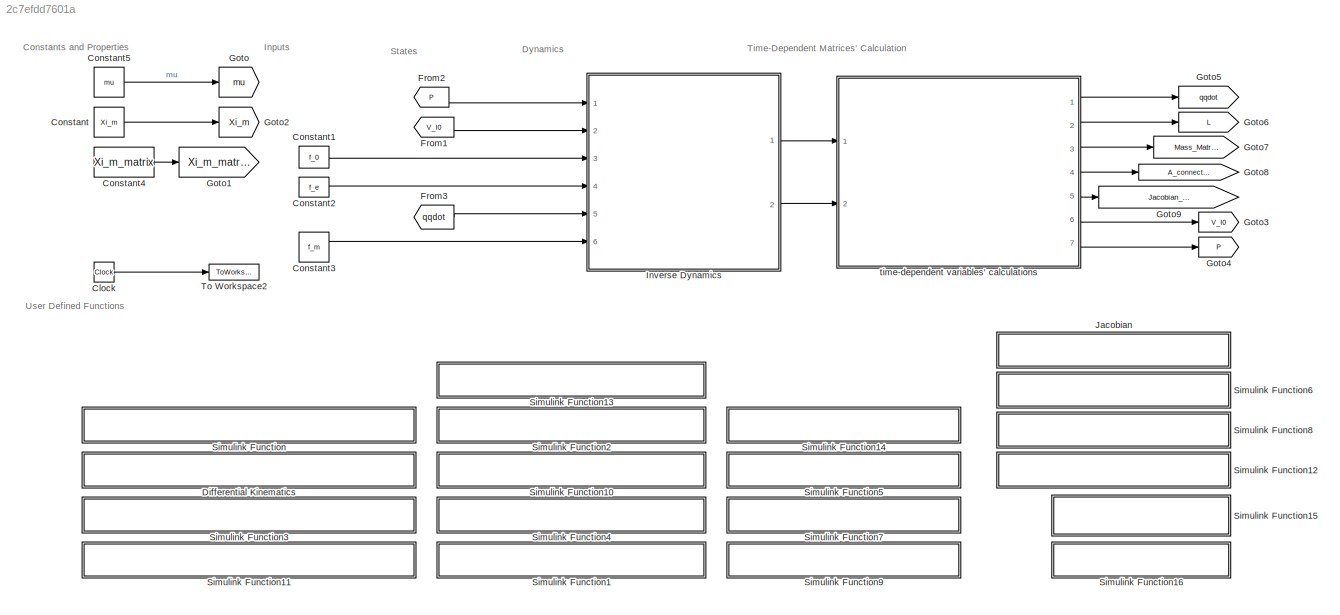
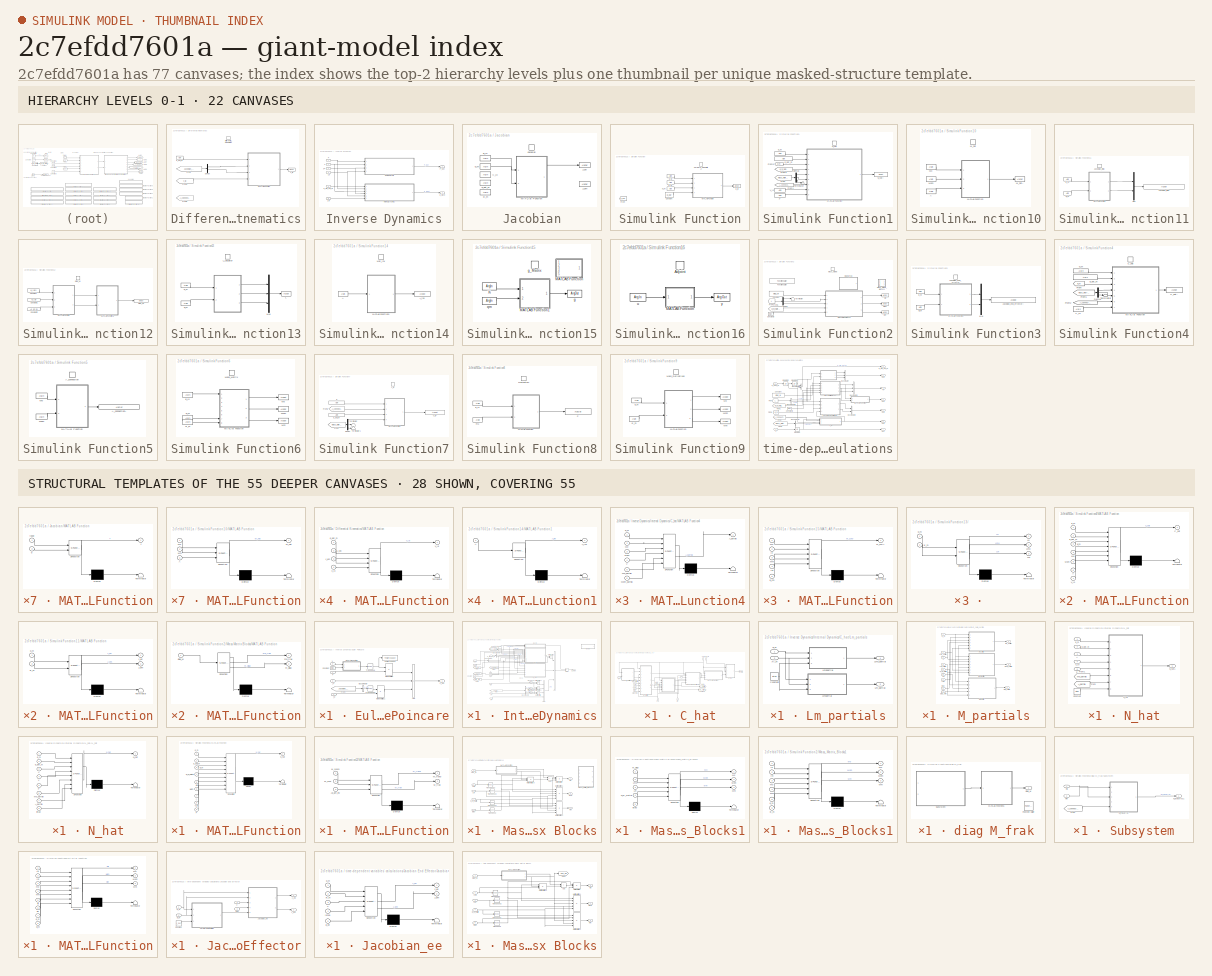
[diagram: thumbnail index - top-2 hierarchy levels (22 canvases) + 28 structural-template representatives of the remaining 55 canvases]
MODEL slx_2c7efdd7601a
KIND model
CONFIG AbsTol = auto
CONFIG EnableMultiTasking = off
CONFIG FixedStep = auto
CONFIG InitFcn = % ************** Initiate forces\n% f0=[0;0;0;0;0;0];\n% f0=[0;0;0;0;0;0;0];\nf_0=[0;0;0];\nf_m=[0;0];\nf_e=[0;0;0;0;0;0];\n% ************** Initiate states\nq_m=[0;0];\nq_dot_m=[0;0];\nP=[0;0;0];\nV_I0=[0;0;0];\n% ************** Load main\n%run(Main.m)
CONFIG MaxStep = auto
CONFIG MinStep = auto
CONFIG RelTol = 1e-3
CONFIG SampleTimeConstraint = Unconstrained
CONFIG SolverName = VariableStepAuto
CONFIG StartTime = 0.0
CONFIG StopTime = 10.0
BLOCK [Clock] Clock
BLOCK [Constant] Constant
  Value = Xi_m
  VectorParams1D = off
BLOCK [Constant] Constant1
  Value = f_0
  VectorParams1D = off
BLOCK [Constant] Constant2
  Value = f_e
  VectorParams1D = off
BLOCK [Constant] Constant3
  Value = f_m
  VectorParams1D = off
BLOCK [Constant] Constant4
  Value = Xi_m_matrix
  VectorParams1D = off
BLOCK [Constant] Constant5
  Commented = on
  Value = mu
BLOCK [SubSystem] Differential Kinematics
  Commented = on
  Ports = [0, 0, 0, 1]
  RequestExecContextInheritance = off
  TreatAsAtomicUnit = on
BLOCK [Demux] Differential Kinematics/Demux
  Outputs = 2
  Ports = [1, 2]
BLOCK [TriggerPort] Differential Kinematics/Differential_Kinematics
  FunctionName = Differential_Kinematics
  FunctionVisibility = scoped
  IsSimulinkFunction = on
  Ports = []
  StatesWhenEnabling = held
  TriggerType = function-call
  VariantControl = (inherit)
BLOCK [From] Differential Kinematics/From
  GotoTag = Jacobian_end_effector
  TagVisibility = global
BLOCK [From] Differential Kinematics/From1
  GotoTag = V_I0
  TagVisibility = global
BLOCK [From] Differential Kinematics/From2
  Commented = on
  GotoTag = A_connection
  TagVisibility = global
BLOCK [SubSystem] Differential Kinematics/MATLAB Function
  ErrorFcn = Stateflow.Translate.translate
  PermitHierarchicalResolution = ExplicitOnly
  Ports = [4, 1]
  RequestExecContextInheritance = off
  SFBlockType = MATLAB Function
  TreatAsAtomicUnit = on
BLOCK [Demux] Differential Kinematics/MATLAB Function/ Demux 
  Outputs = 1
  Ports = [1, 1]
BLOCK [S-Function] Differential Kinematics/MATLAB Function/ SFunction 
  EnableBusSupport = on
  FunctionName = sf_sfun
  PortCounts = [4 2]
  Ports = [4, 2]
  SFcnIsStateOwnerBlock = off
  SFunctionDeploymentMode = off
  Tag = Stateflow S-Function 4
BLOCK [Terminator] Differential Kinematics/MATLAB Function/ Terminator 
BLOCK [Inport] Differential Kinematics/MATLAB Function/J_e0
  Port = 2
BLOCK [Inport] Differential Kinematics/MATLAB Function/J_em
  Port = 3
BLOCK [Inport] Differential Kinematics/MATLAB Function/V_I0
  Port = 4
BLOCK [Outport] Differential Kinematics/MATLAB Function/V_Ie
BLOCK [Inport] Differential Kinematics/MATLAB Function/q_dot_m
BLOCK [ArgOut] Differential Kinematics/V_Ie
  ArgumentName = V_Ie
  DisableCoverage = on
BLOCK [ArgIn] Differential Kinematics/q_dot_m
  ArgumentName = q_dot_m
  DisableCoverage = on
BLOCK [From] From1
  GotoTag = V_I0
  TagVisibility = global
BLOCK [From] From2
  GotoTag = P
  TagVisibility = global
BLOCK [From] From3
  GotoTag = qqdot
  TagVisibility = global
BLOCK [Goto] Goto
  Commented = on
  GotoTag = mu
  TagVisibility = global
BLOCK [Goto] Goto1
  GotoTag = Xi_m_matrix
  TagVisibility = global
BLOCK [Goto] Goto2
  GotoTag = Xi_m
  TagVisibility = global
BLOCK [Goto] Goto3
  GotoTag = V_I0
  TagVisibility = global
BLOCK [Goto] Goto4
  GotoTag = P
  TagVisibility = global
BLOCK [Goto] Goto5
  GotoTag = qqdot
  TagVisibility = global
BLOCK [Goto] Goto6
  GotoTag = L
  TagVisibility = global
BLOCK [Goto] Goto7
  GotoTag = Mass_Matrix
  TagVisibility = global
BLOCK [Goto] Goto8
  GotoTag = A_connection
  TagVisibility = global
BLOCK [Goto] Goto9
  GotoTag = Jacobian_end_effector
  TagVisibility = global
BLOCK [SubSystem] Inverse Dynamics
  NameLocation = right
  Ports = [6, 2]
  RequestExecContextInheritance = off
BLOCK [SubSystem] Inverse Dynamics/Euler Poincare
  Ports = [4, 1]
  RequestExecContextInheritance = off
BLOCK [Sum] Inverse Dynamics/Euler Poincare/Add
  IconShape = rectangular
  Inputs = +--
  Ports = [3, 1]
BLOCK [BusSelector] Inverse Dynamics/Euler Poincare/Bus Selector
  OutputSignals = J_e0
  Ports = [1, 1]
BLOCK [Constant] Inverse Dynamics/Euler Poincare/Constant
  Value = iota0
BLOCK [From] Inverse Dynamics/Euler Poincare/From
  GotoTag = Jacobian_end_effector
  TagVisibility = global
BLOCK [SubSystem] Inverse Dynamics/Euler Poincare/MATLAB Function
  ErrorFcn = Stateflow.Translate.translate
  PermitHierarchicalResolution = ExplicitOnly
  Ports = [2, 1]
  RequestExecContextInheritance = off
  SFBlockType = MATLAB Function
  TreatAsAtomicUnit = on
BLOCK [Demux] Inverse Dynamics/Euler Poincare/MATLAB Function/ Demux 
  Outputs = 1
  Ports = [1, 1]
BLOCK [S-Function] Inverse Dynamics/Euler Poincare/MATLAB Function/ SFunction 
  EnableBusSupport = on
  FunctionName = sf_sfun
  PortCounts = [2 2]
  Ports = [2, 2]
  SFcnIsStateOwnerBlock = off
  SFunctionDeploymentMode = off
  Tag = Stateflow S-Function 24
BLOCK [Terminator] Inverse Dynamics/Euler Poincare/MATLAB Function/ Terminator 
BLOCK [Inport] Inverse Dynamics/Euler Poincare/MATLAB Function/V
BLOCK [Outport] Inverse Dynamics/Euler Poincare/MATLAB Function/adj_low
BLOCK [Inport] Inverse Dynamics/Euler Poincare/MATLAB Function/iota0
  Port = 2
BLOCK [Product] Inverse Dynamics/Euler Poincare/Matrix Multiply
  Multiplication = Matrix(*)
  Ports = [2, 1]
BLOCK [Product] Inverse Dynamics/Euler Poincare/Matrix Multiply1
  Multiplication = Matrix(*)
  Ports = [2, 1]
BLOCK [Inport] Inverse Dynamics/Euler Poincare/P
BLOCK [Outport] Inverse Dynamics/Euler Poincare/P_dot
BLOCK [ToWorkspace] Inverse Dynamics/Euler Poincare/To Workspace
  FixptAsFi = on
  MaxDataPoints = inf
  Ports = [1]
  SampleTime = -1
  SaveFormat = Timeseries
  VariableName = simout
BLOCK [Math] Inverse Dynamics/Euler Poincare/Transpose
  Operator = transpose
  Ports = [1, 1]
BLOCK [Math] Inverse Dynamics/Euler Poincare/Transpose1
  Operator = transpose
  Ports = [1, 1]
BLOCK [Inport] Inverse Dynamics/Euler Poincare/V
  Port = 2
BLOCK [Inport] Inverse Dynamics/Euler Poincare/f_0
  Port = 3
BLOCK [Inport] Inverse Dynamics/Euler Poincare/f_e
  Port = 4
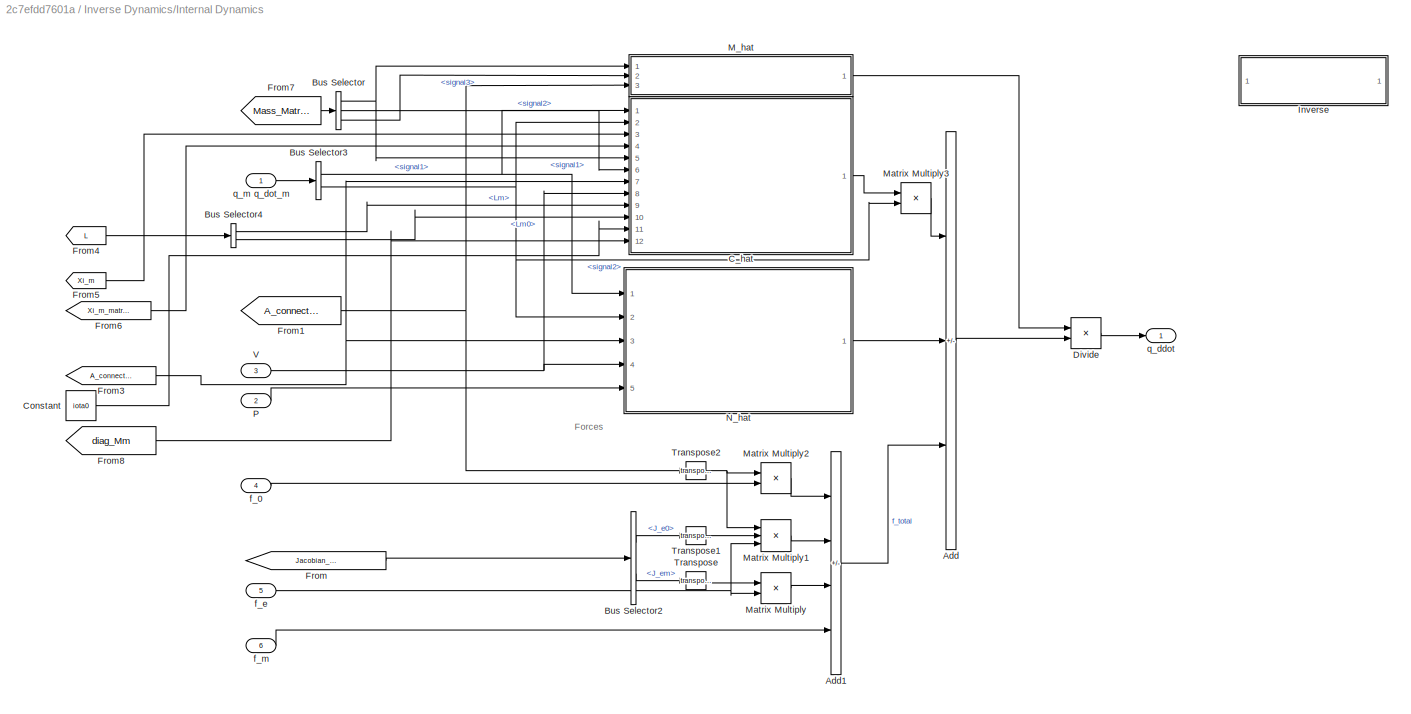
BLOCK [SubSystem] Inverse Dynamics/Internal Dynamics
  Ports = [6, 1]
  RequestExecContextInheritance = off
BLOCK [Sum] Inverse Dynamics/Internal Dynamics/Add
  IconShape = rectangular
  Inputs = --+
  Ports = [3, 1]
BLOCK [Sum] Inverse Dynamics/Internal Dynamics/Add1
  IconShape = rectangular
  Inputs = --++
  Ports = [4, 1]
BLOCK [BusSelector] Inverse Dynamics/Internal Dynamics/Bus Selector
  OutputSignals = signal1,signal2,signal3
  Ports = [1, 3]
BLOCK [BusSelector] Inverse Dynamics/Internal Dynamics/Bus Selector2
  OutputSignals = J_e0,J_em
  Ports = [1, 2]
BLOCK [BusSelector] Inverse Dynamics/Internal Dynamics/Bus Selector3
  OutputSignals = signal1,signal2
  Ports = [1, 2]
BLOCK [BusSelector] Inverse Dynamics/Internal Dynamics/Bus Selector4
  OutputSignals = Lm,Lm0
  Ports = [1, 2]
BLOCK [SubSystem] Inverse Dynamics/Internal Dynamics/C_hat
  Ports = [12, 1]
  RequestExecContextInheritance = off
BLOCK [Inport] Inverse Dynamics/Internal Dynamics/C_hat/<Lm0>
  NameLocation = right
  Port = 10
BLOCK [Inport] Inverse Dynamics/Internal Dynamics/C_hat/<Lm>
  Port = 9
BLOCK [Inport] Inverse Dynamics/Internal Dynamics/C_hat/A
  Port = 7
BLOCK [SubSystem] Inverse Dynamics/Internal Dynamics/C_hat/C_hat
  ErrorFcn = Stateflow.Translate.translate
  PermitHierarchicalResolution = ExplicitOnly
  Ports = [3, 1]
  RequestExecContextInheritance = off
  SFBlockType = MATLAB Function
  TreatAsAtomicUnit = on
BLOCK [Demux] Inverse Dynamics/Internal Dynamics/C_hat/C_hat/ Demux 
  Outputs = 1
  Ports = [1, 1]
BLOCK [S-Function] Inverse Dynamics/Internal Dynamics/C_hat/C_hat/ SFunction 
  EnableBusSupport = on
  FunctionName = sf_sfun
  PortCounts = [3 2]
  Ports = [3, 2]
  SFcnIsStateOwnerBlock = off
  SFunctionDeploymentMode = off
  Tag = Stateflow S-Function 30
BLOCK [Terminator] Inverse Dynamics/Internal Dynamics/C_hat/C_hat/ Terminator 
BLOCK [Outport] Inverse Dynamics/Internal Dynamics/C_hat/C_hat/C_hat
BLOCK [Inport] Inverse Dynamics/Internal Dynamics/C_hat/C_hat/Mm_hat_partial
  Port = 3
BLOCK [Inport] Inverse Dynamics/Internal Dynamics/C_hat/C_hat/q_dot_m
  Port = 2
BLOCK [Inport] Inverse Dynamics/Internal Dynamics/C_hat/C_hat/q_m
BLOCK [Outport] Inverse Dynamics/Internal Dynamics/C_hat/C_hat1
BLOCK [Goto] Inverse Dynamics/Internal Dynamics/C_hat/Goto1
  GotoTag = A_partial
  TagVisibility = global
BLOCK [Goto] Inverse Dynamics/Internal Dynamics/C_hat/Goto2
  GotoTag = M0_partial
  TagVisibility = global
BLOCK [SubSystem] Inverse Dynamics/Internal Dynamics/C_hat/Lm_partials
  Ports = [2, 2]
  RequestExecContextInheritance = off
BLOCK [Constant] Inverse Dynamics/Internal Dynamics/C_hat/Lm_partials/Constant
  Value = iota0
BLOCK [Outport] Inverse Dynamics/Internal Dynamics/C_hat/Lm_partials/Lm0_partial
BLOCK [SubSystem] Inverse Dynamics/Internal Dynamics/C_hat/Lm_partials/Lm0partial
  ErrorFcn = Stateflow.Translate.translate
  PermitHierarchicalResolution = ExplicitOnly
  Ports = [3, 1]
  RequestExecContextInheritance = off
  SFBlockType = MATLAB Function
  TreatAsAtomicUnit = on
BLOCK [Demux] Inverse Dynamics/Internal Dynamics/C_hat/Lm_partials/Lm0partial/ Demux 
  Outputs = 1
  Ports = [1, 1]
BLOCK [S-Function] Inverse Dynamics/Internal Dynamics/C_hat/Lm_partials/Lm0partial/ SFunction 
  EnableBusSupport = on
  FunctionName = sf_sfun
  PortCounts = [3 2]
  Ports = [3, 2]
  SFcnIsStateOwnerBlock = off
  SFunctionDeploymentMode = off
  Tag = Stateflow S-Function 31
BLOCK [Terminator] Inverse Dynamics/Internal Dynamics/C_hat/Lm_partials/Lm0partial/ Terminator 
BLOCK [Outport] Inverse Dynamics/Internal Dynamics/C_hat/Lm_partials/Lm0partial/Lm0_partial
BLOCK [Inport] Inverse Dynamics/Internal Dynamics/C_hat/Lm_partials/Lm0partial/Xi_m
  Port = 2
BLOCK [Inport] Inverse Dynamics/Internal Dynamics/C_hat/Lm_partials/Lm0partial/iota0
  Port = 3
BLOCK [Inport] Inverse Dynamics/Internal Dynamics/C_hat/Lm_partials/Lm0partial/q_m
BLOCK [Outport] Inverse Dynamics/Internal Dynamics/C_hat/Lm_partials/Lm_partial
  Port = 2
BLOCK [SubSystem] Inverse Dynamics/Internal Dynamics/C_hat/Lm_partials/Lmpartial
  ErrorFcn = Stateflow.Translate.translate
  PermitHierarchicalResolution = ExplicitOnly
  Ports = [3, 1]
  RequestExecContextInheritance = off
  SFBlockType = MATLAB Function
  TreatAsAtomicUnit = on
BLOCK [Demux] Inverse Dynamics/Internal Dynamics/C_hat/Lm_partials/Lmpartial/ Demux 
  Outputs = 1
  Ports = [1, 1]
BLOCK [S-Function] Inverse Dynamics/Internal Dynamics/C_hat/Lm_partials/Lmpartial/ SFunction 
  EnableBusSupport = on
  FunctionName = sf_sfun
  PortCounts = [3 2]
  Ports = [3, 2]
  SFcnIsStateOwnerBlock = off
  SFunctionDeploymentMode = off
  Tag = Stateflow S-Function 37
BLOCK [Terminator] Inverse Dynamics/Internal Dynamics/C_hat/Lm_partials/Lmpartial/ Terminator 
BLOCK [Outport] Inverse Dynamics/Internal Dynamics/C_hat/Lm_partials/Lmpartial/Lm_partial
BLOCK [Inport] Inverse Dynamics/Internal Dynamics/C_hat/Lm_partials/Lmpartial/Xi_m
  Port = 2
BLOCK [Inport] Inverse Dynamics/Internal Dynamics/C_hat/Lm_partials/Lmpartial/iota0
  Port = 3
BLOCK [Inport] Inverse Dynamics/Internal Dynamics/C_hat/Lm_partials/Lmpartial/q_m
BLOCK [Inport] Inverse Dynamics/Internal Dynamics/C_hat/Lm_partials/Xi_m
  Port = 2
BLOCK [Inport] Inverse Dynamics/Internal Dynamics/C_hat/Lm_partials/q_m
BLOCK [Inport] Inverse Dynamics/Internal Dynamics/C_hat/M0
  NameLocation = right
  Port = 5
BLOCK [Inport] Inverse Dynamics/Internal Dynamics/C_hat/M0m
  Port = 6
BLOCK [SubSystem] Inverse Dynamics/Internal Dynamics/C_hat/MATLAB Function4
  ErrorFcn = Stateflow.Translate.translate
  PermitHierarchicalResolution = ExplicitOnly
  Ports = [6, 1]
  RequestExecContextInheritance = off
  SFBlockType = MATLAB Function
  TreatAsAtomicUnit = on
BLOCK [Demux] Inverse Dynamics/Internal Dynamics/C_hat/MATLAB Function4/ Demux 
  Outputs = 1
  Ports = [1, 1]
BLOCK [S-Function] Inverse Dynamics/Internal Dynamics/C_hat/MATLAB Function4/ SFunction 
  EnableBusSupport = on
  FunctionName = sf_sfun
  PortCounts = [6 2]
  Ports = [6, 2]
  SFcnIsStateOwnerBlock = off
  SFunctionDeploymentMode = off
  Tag = Stateflow S-Function 42
BLOCK [Terminator] Inverse Dynamics/Internal Dynamics/C_hat/MATLAB Function4/ Terminator 
BLOCK [Outport] Inverse Dynamics/Internal Dynamics/C_hat/MATLAB Function4/A_partial
BLOCK [Inport] Inverse Dynamics/Internal Dynamics/C_hat/MATLAB Function4/M0
  Port = 2
BLOCK [Inport] Inverse Dynamics/Internal Dynamics/C_hat/MATLAB Function4/M0_partial
  Port = 5
BLOCK [Inport] Inverse Dynamics/Internal Dynamics/C_hat/MATLAB Function4/M0m
  Port = 3
BLOCK [Inport] Inverse Dynamics/Internal Dynamics/C_hat/MATLAB Function4/M0m_partial
  Port = 6
BLOCK [Inport] Inverse Dynamics/Internal Dynamics/C_hat/MATLAB Function4/V
  Port = 4
BLOCK [Inport] Inverse Dynamics/Internal Dynamics/C_hat/MATLAB Function4/q_m
BLOCK [SubSystem] Inverse Dynamics/Internal Dynamics/C_hat/MATLAB Function6
  ErrorFcn = Stateflow.Translate.translate
  PermitHierarchicalResolution = ExplicitOnly
  Ports = [6, 1]
  RequestExecContextInheritance = off
  SFBlockType = MATLAB Function
  TreatAsAtomicUnit = on
BLOCK [Demux] Inverse Dynamics/Internal Dynamics/C_hat/MATLAB Function6/ Demux 
  Outputs = 1
  Ports = [1, 1]
BLOCK [S-Function] Inverse Dynamics/Internal Dynamics/C_hat/MATLAB Function6/ SFunction 
  EnableBusSupport = on
  FunctionName = sf_sfun
  PortCounts = [6 2]
  Ports = [6, 2]
  SFcnIsStateOwnerBlock = off
  SFunctionDeploymentMode = off
  Tag = Stateflow S-Function 44
BLOCK [Terminator] Inverse Dynamics/Internal Dynamics/C_hat/MATLAB Function6/ Terminator 
BLOCK [Inport] Inverse Dynamics/Internal Dynamics/C_hat/MATLAB Function6/A
  Port = 3
BLOCK [Outport] Inverse Dynamics/Internal Dynamics/C_hat/MATLAB Function6/AMA_partial
BLOCK [Inport] Inverse Dynamics/Internal Dynamics/C_hat/MATLAB Function6/A_partial
  Port = 6
BLOCK [Inport] Inverse Dynamics/Internal Dynamics/C_hat/MATLAB Function6/M0
  Port = 2
BLOCK [Inport] Inverse Dynamics/Internal Dynamics/C_hat/MATLAB Function6/M0_partial
  Port = 5
BLOCK [Inport] Inverse Dynamics/Internal Dynamics/C_hat/MATLAB Function6/V
  Port = 4
BLOCK [Inport] Inverse Dynamics/Internal Dynamics/C_hat/MATLAB Function6/q_m
BLOCK [SubSystem] Inverse Dynamics/Internal Dynamics/C_hat/MATLAB Function7
  ErrorFcn = Stateflow.Translate.translate
  PermitHierarchicalResolution = ExplicitOnly
  Ports = [3, 1]
  RequestExecContextInheritance = off
  SFBlockType = MATLAB Function
  TreatAsAtomicUnit = on
BLOCK [Demux] Inverse Dynamics/Internal Dynamics/C_hat/MATLAB Function7/ Demux 
  Outputs = 1
  Ports = [1, 1]
BLOCK [S-Function] Inverse Dynamics/Internal Dynamics/C_hat/MATLAB Function7/ SFunction 
  EnableBusSupport = on
  FunctionName = sf_sfun
  PortCounts = [3 2]
  Ports = [3, 2]
  SFcnIsStateOwnerBlock = off
  SFunctionDeploymentMode = off
  Tag = Stateflow S-Function 45
BLOCK [Terminator] Inverse Dynamics/Internal Dynamics/C_hat/MATLAB Function7/ Terminator 
BLOCK [Inport] Inverse Dynamics/Internal Dynamics/C_hat/MATLAB Function7/AMA_partial
  Port = 3
BLOCK [Outport] Inverse Dynamics/Internal Dynamics/C_hat/MATLAB Function7/Mm_hat_partial
BLOCK [Inport] Inverse Dynamics/Internal Dynamics/C_hat/MATLAB Function7/Mm_partial
  Port = 2
BLOCK [Inport] Inverse Dynamics/Internal Dynamics/C_hat/MATLAB Function7/q_m
BLOCK [SubSystem] Inverse Dynamics/Internal Dynamics/C_hat/M_partials
  Ports = [9, 3]
  RequestExecContextInheritance = off
BLOCK [SubSystem] Inverse Dynamics/Internal Dynamics/C_hat/M_partials/ M0partial
  ErrorFcn = Stateflow.Translate.translate
  PermitHierarchicalResolution = ExplicitOnly
  Ports = [6, 1]
  RequestExecContextInheritance = off
  SFBlockType = MATLAB Function
  TreatAsAtomicUnit = on
BLOCK [Demux] Inverse Dynamics/Internal Dynamics/C_hat/M_partials/ M0partial/ Demux 
  Outputs = 1
  Ports = [1, 1]
BLOCK [S-Function] Inverse Dynamics/Internal Dynamics/C_hat/M_partials/ M0partial/ SFunction 
  EnableBusSupport = on
  FunctionName = sf_sfun
  PortCounts = [6 2]
  Ports = [6, 2]
  SFcnIsStateOwnerBlock = off
  SFunctionDeploymentMode = off
  Tag = Stateflow S-Function 38
BLOCK [Terminator] Inverse Dynamics/Internal Dynamics/C_hat/M_partials/ M0partial/ Terminator 
BLOCK [Inport] Inverse Dynamics/Internal Dynamics/C_hat/M_partials/ M0partial/Lm0
  Port = 2
BLOCK [Inport] Inverse Dynamics/Internal Dynamics/C_hat/M_partials/ M0partial/Lm0_partial
  Port = 6
BLOCK [Outport] Inverse Dynamics/Internal Dynamics/C_hat/M_partials/ M0partial/M0_partial
BLOCK [Inport] Inverse Dynamics/Internal Dynamics/C_hat/M_partials/ M0partial/V
  Port = 3
BLOCK [Inport] Inverse Dynamics/Internal Dynamics/C_hat/M_partials/ M0partial/diag_Mm
  Port = 5
BLOCK [Inport] Inverse Dynamics/Internal Dynamics/C_hat/M_partials/ M0partial/iota0
  Port = 4
BLOCK [Inport] Inverse Dynamics/Internal Dynamics/C_hat/M_partials/ M0partial/q_m
BLOCK [Inport] Inverse Dynamics/Internal Dynamics/C_hat/M_partials/Lm
  Port = 6
BLOCK [Inport] Inverse Dynamics/Internal Dynamics/C_hat/M_partials/Lm0
  Port = 7
BLOCK [Inport] Inverse Dynamics/Internal Dynamics/C_hat/M_partials/Lm0_partial
  Port = 2
BLOCK [Inport] Inverse Dynamics/Internal Dynamics/C_hat/M_partials/Lm_partial
  Port = 4
BLOCK [Outport] Inverse Dynamics/Internal Dynamics/C_hat/M_partials/M0_partial
  Port = 2
BLOCK [Outport] Inverse Dynamics/Internal Dynamics/C_hat/M_partials/M0m_partial
  Port = 3
BLOCK [SubSystem] Inverse Dynamics/Internal Dynamics/C_hat/M_partials/M0mpartial
  ErrorFcn = Stateflow.Translate.translate
  PermitHierarchicalResolution = ExplicitOnly
  Ports = [7, 1]
  RequestExecContextInheritance = off
  SFBlockType = MATLAB Function
  TreatAsAtomicUnit = on
BLOCK [Demux] Inverse Dynamics/Internal Dynamics/C_hat/M_partials/M0mpartial/ Demux 
  Outputs = 1
  Ports = [1, 1]
BLOCK [S-Function] Inverse Dynamics/Internal Dynamics/C_hat/M_partials/M0mpartial/ SFunction 
  EnableBusSupport = on
  FunctionName = sf_sfun
  PortCounts = [7 2]
  Ports = [7, 2]
  SFcnIsStateOwnerBlock = off
  SFunctionDeploymentMode = off
  Tag = Stateflow S-Function 39
BLOCK [Terminator] Inverse Dynamics/Internal Dynamics/C_hat/M_partials/M0mpartial/ Terminator 
BLOCK [Inport] Inverse Dynamics/Internal Dynamics/C_hat/M_partials/M0mpartial/Lm0
  Port = 3
BLOCK [Inport] Inverse Dynamics/Internal Dynamics/C_hat/M_partials/M0mpartial/Lm0_partial
  Port = 6
BLOCK [Inport] Inverse Dynamics/Internal Dynamics/C_hat/M_partials/M0mpartial/Lm_partial
  Port = 7
BLOCK [Outport] Inverse Dynamics/Internal Dynamics/C_hat/M_partials/M0mpartial/M0m_partial
BLOCK [Inport] Inverse Dynamics/Internal Dynamics/C_hat/M_partials/M0mpartial/V
  Port = 2
BLOCK [Inport] Inverse Dynamics/Internal Dynamics/C_hat/M_partials/M0mpartial/diag_Mm
  Port = 5
BLOCK [Inport] Inverse Dynamics/Internal Dynamics/C_hat/M_partials/M0mpartial/iota0
  Port = 4
BLOCK [Inport] Inverse Dynamics/Internal Dynamics/C_hat/M_partials/M0mpartial/q_m
BLOCK [Outport] Inverse Dynamics/Internal Dynamics/C_hat/M_partials/Mm_partial
BLOCK [SubSystem] Inverse Dynamics/Internal Dynamics/C_hat/M_partials/Mmpartial
  ErrorFcn = Stateflow.Translate.translate
  PermitHierarchicalResolution = ExplicitOnly
  Ports = [5, 1]
  RequestExecContextInheritance = off
  SFBlockType = MATLAB Function
  TreatAsAtomicUnit = on
BLOCK [Demux] Inverse Dynamics/Internal Dynamics/C_hat/M_partials/Mmpartial/ Demux 
  Outputs = 1
  Ports = [1, 1]
BLOCK [S-Function] Inverse Dynamics/Internal Dynamics/C_hat/M_partials/Mmpartial/ SFunction 
  EnableBusSupport = on
  FunctionName = sf_sfun
  PortCounts = [5 2]
  Ports = [5, 2]
  SFcnIsStateOwnerBlock = off
  SFunctionDeploymentMode = off
  Tag = Stateflow S-Function 43
BLOCK [Terminator] Inverse Dynamics/Internal Dynamics/C_hat/M_partials/Mmpartial/ Terminator 
BLOCK [Inport] Inverse Dynamics/Internal Dynamics/C_hat/M_partials/Mmpartial/Lm
  Port = 3
BLOCK [Inport] Inverse Dynamics/Internal Dynamics/C_hat/M_partials/Mmpartial/Lm_partial
  Port = 5
BLOCK [Outport] Inverse Dynamics/Internal Dynamics/C_hat/M_partials/Mmpartial/Mm_partial
BLOCK [Inport] Inverse Dynamics/Internal Dynamics/C_hat/M_partials/Mmpartial/Xi_m_Matrix
  Port = 2
BLOCK [Inport] Inverse Dynamics/Internal Dynamics/C_hat/M_partials/Mmpartial/diag_Mm
  Port = 4
BLOCK [Inport] Inverse Dynamics/Internal Dynamics/C_hat/M_partials/Mmpartial/q_m
BLOCK [Inport] Inverse Dynamics/Internal Dynamics/C_hat/M_partials/V
  Port = 3
BLOCK [Inport] Inverse Dynamics/Internal Dynamics/C_hat/M_partials/Xi_m_Matrix
  NameLocation = top
  Port = 5
BLOCK [Inport] Inverse Dynamics/Internal Dynamics/C_hat/M_partials/diag_Mm
  Port = 9
BLOCK [Inport] Inverse Dynamics/Internal Dynamics/C_hat/M_partials/iota0
  Port = 8
BLOCK [Inport] Inverse Dynamics/Internal Dynamics/C_hat/M_partials/q_m
BLOCK [Inport] Inverse Dynamics/Internal Dynamics/C_hat/V_I0
  NameLocation = right
  Port = 8
BLOCK [Inport] Inverse Dynamics/Internal Dynamics/C_hat/Xi_m
  NameLocation = right
  Port = 3
BLOCK [Inport] Inverse Dynamics/Internal Dynamics/C_hat/Xi_m_Matrix
  Port = 4
BLOCK [Inport] Inverse Dynamics/Internal Dynamics/C_hat/diag_Mm
  Port = 12
BLOCK [Inport] Inverse Dynamics/Internal Dynamics/C_hat/iota0
  Port = 11
BLOCK [Inport] Inverse Dynamics/Internal Dynamics/C_hat/q_dot_m
  NameLocation = left
  Port = 2
BLOCK [Inport] Inverse Dynamics/Internal Dynamics/C_hat/q_m
  NameLocation = left
BLOCK [Constant] Inverse Dynamics/Internal Dynamics/Constant
  Value = iota0
BLOCK [Product] Inverse Dynamics/Internal Dynamics/Divide
  Inputs = /*
  Multiplication = Matrix(*)
  Ports = [2, 1]
BLOCK [From] Inverse Dynamics/Internal Dynamics/From
  GotoTag = Jacobian_end_effector
  TagVisibility = global
BLOCK [From] Inverse Dynamics/Internal Dynamics/From1
  GotoTag = A_connection
  TagVisibility = global
BLOCK [From] Inverse Dynamics/Internal Dynamics/From3
  GotoTag = A_connection
  TagVisibility = global
BLOCK [From] Inverse Dynamics/Internal Dynamics/From4
  GotoTag = L
  TagVisibility = global
BLOCK [From] Inverse Dynamics/Internal Dynamics/From5
  GotoTag = Xi_m
  TagVisibility = global
BLOCK [From] Inverse Dynamics/Internal Dynamics/From6
  GotoTag = Xi_m_matrix
  TagVisibility = global
BLOCK [From] Inverse Dynamics/Internal Dynamics/From7
  GotoTag = Mass_Matrix
  TagVisibility = global
BLOCK [From] Inverse Dynamics/Internal Dynamics/From8
  GotoTag = diag_Mm
  TagVisibility = global
BLOCK [SubSystem] Inverse Dynamics/Internal Dynamics/Inverse
  Commented = on
  ErrorFcn = Stateflow.Translate.translate
  PermitHierarchicalResolution = ExplicitOnly
  Ports = [1, 1]
  RequestExecContextInheritance = off
  SFBlockType = MATLAB Function
  TreatAsAtomicUnit = on
BLOCK [Demux] Inverse Dynamics/Internal Dynamics/Inverse/ Demux 
  Outputs = 1
  Ports = [1, 1]
BLOCK [S-Function] Inverse Dynamics/Internal Dynamics/Inverse/ SFunction 
  EnableBusSupport = on
  FunctionName = sf_sfun
  PortCounts = [1 2]
  Ports = [1, 2]
  SFcnIsStateOwnerBlock = off
  SFunctionDeploymentMode = off
  Tag = Stateflow S-Function 29
BLOCK [Terminator] Inverse Dynamics/Internal Dynamics/Inverse/ Terminator 
BLOCK [Inport] Inverse Dynamics/Internal Dynamics/Inverse/M_hat
BLOCK [Outport] Inverse Dynamics/Internal Dynamics/Inverse/M_hat_inverse
BLOCK [SubSystem] Inverse Dynamics/Internal Dynamics/M_hat
  ErrorFcn = Stateflow.Translate.translate
  PermitHierarchicalResolution = ExplicitOnly
  Ports = [3, 1]
  RequestExecContextInheritance = off
  SFBlockType = MATLAB Function
  TreatAsAtomicUnit = on
BLOCK [Demux] Inverse Dynamics/Internal Dynamics/M_hat/ Demux 
  Outputs = 1
  Ports = [1, 1]
BLOCK [S-Function] Inverse Dynamics/Internal Dynamics/M_hat/ SFunction 
  EnableBusSupport = on
  FunctionName = sf_sfun
  PortCounts = [3 2]
  Ports = [3, 2]
  SFcnIsStateOwnerBlock = off
  SFunctionDeploymentMode = off
  Tag = Stateflow S-Function 32
BLOCK [Terminator] Inverse Dynamics/Internal Dynamics/M_hat/ Terminator 
BLOCK [Inport] Inverse Dynamics/Internal Dynamics/M_hat/A
  Port = 3
BLOCK [Inport] Inverse Dynamics/Internal Dynamics/M_hat/M0
BLOCK [Outport] Inverse Dynamics/Internal Dynamics/M_hat/M_hat
BLOCK [Inport] Inverse Dynamics/Internal Dynamics/M_hat/Mm
  Port = 2
BLOCK [Product] Inverse Dynamics/Internal Dynamics/Matrix Multiply
  Multiplication = Matrix(*)
  Ports = [2, 1]
BLOCK [Product] Inverse Dynamics/Internal Dynamics/Matrix Multiply1
  Inputs = 3
  Multiplication = Matrix(*)
  Ports = [3, 1]
BLOCK [Product] Inverse Dynamics/Internal Dynamics/Matrix Multiply2
  Multiplication = Matrix(*)
  Ports = [2, 1]
BLOCK [Product] Inverse Dynamics/Internal Dynamics/Matrix Multiply3
  Multiplication = Matrix(*)
  Ports = [2, 1]
BLOCK [SubSystem] Inverse Dynamics/Internal Dynamics/N_hat
  Ports = [5, 1]
  RequestExecContextInheritance = off
BLOCK [Inport] Inverse Dynamics/Internal Dynamics/N_hat/A
  Port = 3
BLOCK [Constant] Inverse Dynamics/Internal Dynamics/N_hat/Constant
  Value = iota0
BLOCK [From] Inverse Dynamics/Internal Dynamics/N_hat/From
  GotoTag = A_partial
  TagVisibility = global
BLOCK [From] Inverse Dynamics/Internal Dynamics/N_hat/From1
  GotoTag = M0_partial
  TagVisibility = global
BLOCK [SubSystem] Inverse Dynamics/Internal Dynamics/N_hat/N_hat
  ErrorFcn = Stateflow.Translate.translate
  PermitHierarchicalResolution = ExplicitOnly
  Ports = [8, 1]
  RequestExecContextInheritance = off
  SFBlockType = MATLAB Function
  TreatAsAtomicUnit = on
BLOCK [Demux] Inverse Dynamics/Internal Dynamics/N_hat/N_hat/ Demux 
  Outputs = 1
  Ports = [1, 1]
BLOCK [S-Function] Inverse Dynamics/Internal Dynamics/N_hat/N_hat/ SFunction 
  EnableBusSupport = on
  FunctionName = sf_sfun
  PortCounts = [8 2]
  Ports = [8, 2]
  SFcnIsStateOwnerBlock = off
  SFunctionDeploymentMode = off
  Tag = Stateflow S-Function 33
BLOCK [Terminator] Inverse Dynamics/Internal Dynamics/N_hat/N_hat/ Terminator 
BLOCK [Inport] Inverse Dynamics/Internal Dynamics/N_hat/N_hat/A
  Port = 3
BLOCK [Inport] Inverse Dynamics/Internal Dynamics/N_hat/N_hat/A_partial
  Port = 7
BLOCK [Inport] Inverse Dynamics/Internal Dynamics/N_hat/N_hat/M0_partial
  Port = 6
BLOCK [Outport] Inverse Dynamics/Internal Dynamics/N_hat/N_hat/N_hat
BLOCK [Inport] Inverse Dynamics/Internal Dynamics/N_hat/N_hat/P
  Port = 5
BLOCK [Inport] Inverse Dynamics/Internal Dynamics/N_hat/N_hat/V
  Port = 4
BLOCK [Inport] Inverse Dynamics/Internal Dynamics/N_hat/N_hat/iota0
  Port = 8
BLOCK [Inport] Inverse Dynamics/Internal Dynamics/N_hat/N_hat/q_dot_m
  Port = 2
BLOCK [Inport] Inverse Dynamics/Internal Dynamics/N_hat/N_hat/q_m
BLOCK [Outport] Inverse Dynamics/Internal Dynamics/N_hat/N_hat1
BLOCK [Inport] Inverse Dynamics/Internal Dynamics/N_hat/P
  Port = 5
BLOCK [Inport] Inverse Dynamics/Internal Dynamics/N_hat/V_I0
  Port = 4
BLOCK [Inport] Inverse Dynamics/Internal Dynamics/N_hat/q_dot_m
  Port = 2
BLOCK [Inport] Inverse Dynamics/Internal Dynamics/N_hat/q_m
BLOCK [Inport] Inverse Dynamics/Internal Dynamics/P
  Port = 2
BLOCK [Math] Inverse Dynamics/Internal Dynamics/Transpose
  Operator = transpose
  Ports = [1, 1]
BLOCK [Math] Inverse Dynamics/Internal Dynamics/Transpose1
  Operator = transpose
  Ports = [1, 1]
BLOCK [Math] Inverse Dynamics/Internal Dynamics/Transpose2
  Operator = transpose
  Ports = [1, 1]
BLOCK [Inport] Inverse Dynamics/Internal Dynamics/V
  Port = 3
BLOCK [Inport] Inverse Dynamics/Internal Dynamics/f_0
  Port = 4
BLOCK [Inport] Inverse Dynamics/Internal Dynamics/f_e
  Port = 5
BLOCK [Inport] Inverse Dynamics/Internal Dynamics/f_m
  Port = 6
BLOCK [Outport] Inverse Dynamics/Internal Dynamics/q_ddot
BLOCK [Inport] Inverse Dynamics/Internal Dynamics/q_m q_dot_m
BLOCK [Inport] Inverse Dynamics/P
BLOCK [Outport] Inverse Dynamics/P_dot
BLOCK [Inport] Inverse Dynamics/V
  Port = 2
BLOCK [Inport] Inverse Dynamics/f_0
  Port = 3
BLOCK [Inport] Inverse Dynamics/f_e
  Port = 4
BLOCK [Inport] Inverse Dynamics/f_m
  Port = 6
BLOCK [Outport] Inverse Dynamics/q_ddot
  Port = 2
BLOCK [Inport] Inverse Dynamics/q_m q_dot_m
  Port = 5
BLOCK [SubSystem] Jacobian
  Commented = on
  Ports = [0, 0, 0, 1]
  RequestExecContextInheritance = off
  TreatAsAtomicUnit = on
BLOCK [ArgOut] Jacobian/J_e0
  ArgumentName = J_e0
  DisableCoverage = on
BLOCK [ArgOut] Jacobian/J_em
  ArgumentName = J_em
  DisableCoverage = on
  Port = 2
BLOCK [TriggerPort] Jacobian/Jacobian
  FunctionName = Jacobian
  FunctionVisibility = scoped
  IsSimulinkFunction = on
  Ports = []
  StatesWhenEnabling = held
  TriggerType = function-call
  VariantControl = (inherit)
BLOCK [SubSystem] Jacobian/MATLAB Function
  ErrorFcn = Stateflow.Translate.translate
  PermitHierarchicalResolution = ExplicitOnly
  Ports = [2, 1]
  RequestExecContextInheritance = off
  SFBlockType = MATLAB Function
  TreatAsAtomicUnit = on
BLOCK [Demux] Jacobian/MATLAB Function/ Demux 
  Outputs = 1
  Ports = [1, 1]
BLOCK [S-Function] Jacobian/MATLAB Function/ SFunction 
  EnableBusSupport = on
  FunctionName = sf_sfun
  PortCounts = [2 2]
  Ports = [2, 2]
  SFcnIsStateOwnerBlock = off
  SFunctionDeploymentMode = off
  Tag = Stateflow S-Function 11
BLOCK [Terminator] Jacobian/MATLAB Function/ Terminator 
BLOCK [Outport] Jacobian/MATLAB Function/J
BLOCK [Inport] Jacobian/MATLAB Function/q
  Port = 2
BLOCK [Inport] Jacobian/MATLAB Function/robot
BLOCK [ArgIn] Jacobian/V_I0
  ArgumentName = V_I0
  DisableCoverage = on
  Port = 4
BLOCK [ArgIn] Jacobian/g_I0
  ArgumentName = g_I0
  DisableCoverage = on
BLOCK [ArgIn] Jacobian/q_dot_m
  ArgumentName = q_dot_m
  DisableCoverage = on
  Port = 5
BLOCK [ArgIn] Jacobian/q_m
  ArgumentName = q_m
  DisableCoverage = on
  Port = 2
BLOCK [ArgIn] Jacobian/xi_m
  ArgumentName = xi_m
  DisableCoverage = on
  Port = 3
BLOCK [SubSystem] Simulink Function
  Commented = on
  Ports = [0, 0, 0, 1]
  RequestExecContextInheritance = off
  TreatAsAtomicUnit = on
BLOCK [Constant] Simulink Function/Constant
  Value = g_bar
BLOCK [TriggerPort] Simulink Function/Forward_Kinematics
  FunctionName = Forward_Kinematics
  FunctionVisibility = scoped
  IsSimulinkFunction = on
  Ports = []
  StatesWhenEnabling = held
  TriggerType = function-call
  VariantControl = (inherit)
BLOCK [From] Simulink Function/From
  Commented = on
  GotoTag = g_bar
BLOCK [SubSystem] Simulink Function/MATLAB Function
  ErrorFcn = Stateflow.Translate.translate
  PermitHierarchicalResolution = ExplicitOnly
  Ports = [4, 1]
  RequestExecContextInheritance = off
  SFBlockType = MATLAB Function
  TreatAsAtomicUnit = on
BLOCK [Demux] Simulink Function/MATLAB Function/ Demux 
  Outputs = 1
  Ports = [1, 1]
BLOCK [S-Function] Simulink Function/MATLAB Function/ SFunction 
  EnableBusSupport = on
  FunctionName = sf_sfun
  PortCounts = [4 2]
  Ports = [4, 2]
  SFcnIsStateOwnerBlock = off
  SFunctionDeploymentMode = off
  Tag = Stateflow S-Function 7
BLOCK [Terminator] Simulink Function/MATLAB Function/ Terminator 
BLOCK [Inport] Simulink Function/MATLAB Function/Xi_m
  Port = 3
BLOCK [Inport] Simulink Function/MATLAB Function/g_I0
BLOCK [Outport] Simulink Function/MATLAB Function/g_Ie
BLOCK [Inport] Simulink Function/MATLAB Function/g_bar
  Port = 4
BLOCK [Inport] Simulink Function/MATLAB Function/q_m
  Port = 2
BLOCK [ArgIn] Simulink Function/g_I0
  ArgumentName = g_I0
  DisableCoverage = on
BLOCK [ArgOut] Simulink Function/g_Ie
  ArgumentName = g_Ie
  DisableCoverage = on
BLOCK [ArgIn] Simulink Function/q_m
  ArgumentName = q_m
  DisableCoverage = on
  Port = 2
BLOCK [ArgIn] Simulink Function/xi_m
  ArgumentName = xi_m
  DisableCoverage = on
  Port = 3
BLOCK [SubSystem] Simulink Function1
  Commented = on
  Ports = [0, 0, 0, 1]
  RequestExecContextInheritance = off
  TreatAsAtomicUnit = on
BLOCK [Demux] Simulink Function1/Demux
  Outputs = 3
  Ports = [1, 3]
BLOCK [From] Simulink Function1/From
  GotoTag = Mass_Matrix
  TagVisibility = global
BLOCK [From] Simulink Function1/From1
  GotoTag = A_connection
  TagVisibility = global
BLOCK [From] Simulink Function1/From5
  GotoTag = Xi_m
  TagVisibility = global
BLOCK [From] Simulink Function1/From6
  GotoTag = Xi_m_matrix
  TagVisibility = global
BLOCK [SubSystem] Simulink Function1/MATLAB Function
  ErrorFcn = Stateflow.Translate.translate
  PermitHierarchicalResolution = ExplicitOnly
  Ports = [9, 1]
  RequestExecContextInheritance = off
  SFBlockType = MATLAB Function
  TreatAsAtomicUnit = on
BLOCK [Demux] Simulink Function1/MATLAB Function/ Demux 
  Outputs = 1
  Ports = [1, 1]
BLOCK [S-Function] Simulink Function1/MATLAB Function/ SFunction 
  EnableBusSupport = on
  FunctionName = sf_sfun
  PortCounts = [9 2]
  Ports = [9, 2]
  SFcnIsStateOwnerBlock = off
  SFunctionDeploymentMode = off
  Tag = Stateflow S-Function 10
BLOCK [Terminator] Simulink Function1/MATLAB Function/ Terminator 
BLOCK [Inport] Simulink Function1/MATLAB Function/A
  Port = 7
BLOCK [Inport] Simulink Function1/MATLAB Function/M0
  Port = 5
BLOCK [Inport] Simulink Function1/MATLAB Function/M0m
  Port = 6
BLOCK [Outport] Simulink Function1/MATLAB Function/N_hat
BLOCK [Inport] Simulink Function1/MATLAB Function/P
  Port = 9
BLOCK [Inport] Simulink Function1/MATLAB Function/V_I0
  Port = 8
BLOCK [Inport] Simulink Function1/MATLAB Function/Xi_m
  Port = 3
BLOCK [Inport] Simulink Function1/MATLAB Function/Xi_m_matrix
  Port = 4
BLOCK [Inport] Simulink Function1/MATLAB Function/q_dot_m
  Port = 2
BLOCK [Inport] Simulink Function1/MATLAB Function/q_m
BLOCK [TriggerPort] Simulink Function1/N_hat
  FunctionName = N_hat
  FunctionVisibility = scoped
  IsSimulinkFunction = on
  Ports = []
  StatesWhenEnabling = held
  TriggerType = function-call
  VariantControl = (inherit)
BLOCK [ArgOut] Simulink Function1/N_hat~
  ArgumentName = N_hat
  DisableCoverage = on
BLOCK [ArgIn] Simulink Function1/P
  ArgumentName = P
  DisableCoverage = on
  Port = 4
BLOCK [Terminator] Simulink Function1/Terminator
BLOCK [ArgIn] Simulink Function1/V_I0
  ArgumentName = V_I0
  DisableCoverage = on
  Port = 3
BLOCK [ArgIn] Simulink Function1/q_dot_m
  ArgumentName = q_dot_m
  DisableCoverage = on
  Port = 2
BLOCK [ArgIn] Simulink Function1/q_m
  ArgumentName = q_m
  DisableCoverage = on
BLOCK [SubSystem] Simulink Function10
  Commented = on
  Ports = [0, 0, 0, 1]
  RequestExecContextInheritance = off
  TreatAsAtomicUnit = on
BLOCK [ArgIn] Simulink Function10/A
  ArgumentName = A
  DisableCoverage = on
  Port = 3
BLOCK [ArgIn] Simulink Function10/M0
  ArgumentName = M0
  DisableCoverage = on
BLOCK [ArgIn] Simulink Function10/M0m
  ArgumentName = Mm
  DisableCoverage = on
  Port = 2
BLOCK [SubSystem] Simulink Function10/MATLAB Function
  ErrorFcn = Stateflow.Translate.translate
  PermitHierarchicalResolution = ExplicitOnly
  Ports = [3, 1]
  RequestExecContextInheritance = off
  SFBlockType = MATLAB Function
  TreatAsAtomicUnit = on
BLOCK [Demux] Simulink Function10/MATLAB Function/ Demux 
  Outputs = 1
  Ports = [1, 1]
BLOCK [S-Function] Simulink Function10/MATLAB Function/ SFunction 
  EnableBusSupport = on
  FunctionName = sf_sfun
  PortCounts = [3 2]
  Ports = [3, 2]
  SFcnIsStateOwnerBlock = off
  SFunctionDeploymentMode = off
  Tag = Stateflow S-Function 1
BLOCK [Terminator] Simulink Function10/MATLAB Function/ Terminator 
BLOCK [Inport] Simulink Function10/MATLAB Function/A
  Port = 3
BLOCK [Inport] Simulink Function10/MATLAB Function/M0
BLOCK [Outport] Simulink Function10/MATLAB Function/M_hat
BLOCK [Inport] Simulink Function10/MATLAB Function/Mm
  Port = 2
BLOCK [TriggerPort] Simulink Function10/M_hat
  FunctionName = M_hat
  FunctionVisibility = scoped
  IsSimulinkFunction = on
  Ports = []
  StatesWhenEnabling = held
  TriggerType = function-call
  VariantControl = (inherit)
BLOCK [ArgOut] Simulink Function10/M_hat~
  ArgumentName = M_hat
  DisableCoverage = on
BLOCK [SubSystem] Simulink Function11
  Commented = on
  Ports = [0, 0, 0, 1]
  RequestExecContextInheritance = off
  TreatAsAtomicUnit = on
BLOCK [TriggerPort] Simulink Function11/Jacobian_total
  FunctionName = Jacobian_total
  FunctionVisibility = scoped
  IsSimulinkFunction = on
  Ports = []
  StatesWhenEnabling = held
  TriggerType = function-call
  VariantControl = (inherit)
BLOCK [ArgOut] Simulink Function11/Jacobian_total~
  ArgumentName = Jacobian_total
  DisableCoverage = on
BLOCK [SubSystem] Simulink Function11/MATLAB Function
  ErrorFcn = Stateflow.Translate.translate
  PermitHierarchicalResolution = ExplicitOnly
  Ports = [2, 2]
  RequestExecContextInheritance = off
  SFBlockType = MATLAB Function
  TreatAsAtomicUnit = on
BLOCK [Demux] Simulink Function11/MATLAB Function/ Demux 
  Outputs = 1
  Ports = [1, 1]
BLOCK [S-Function] Simulink Function11/MATLAB Function/ SFunction 
  EnableBusSupport = on
  FunctionName = sf_sfun
  PortCounts = [2 3]
  Ports = [2, 3]
  SFcnIsStateOwnerBlock = off
  SFunctionDeploymentMode = off
  Tag = Stateflow S-Function 2
BLOCK [Terminator] Simulink Function11/MATLAB Function/ Terminator 
BLOCK [Outport] Simulink Function11/MATLAB Function/J_e0
BLOCK [Outport] Simulink Function11/MATLAB Function/J_em
  Port = 2
BLOCK [Inport] Simulink Function11/MATLAB Function/Xi_m
  Port = 2
BLOCK [Inport] Simulink Function11/MATLAB Function/q_m
BLOCK [Mux] Simulink Function11/Mux
  DisplayOption = bar
  Inputs = 2
  Ports = [2, 1]
BLOCK [ArgIn] Simulink Function11/Xi_m
  ArgumentName = Xi_m
  DisableCoverage = on
  Port = 2
BLOCK [ArgIn] Simulink Function11/q_m
  ArgumentName = q_m
  DisableCoverage = on
BLOCK [SubSystem] Simulink Function12
  Commented = on
  Ports = [0, 0, 0, 1]
  RequestExecContextInheritance = off
  TreatAsAtomicUnit = on
BLOCK [Constant] Simulink Function12/Constant
  Value = M_curly0
BLOCK [Constant] Simulink Function12/Constant1
  Value = M_curly
BLOCK [Constant] Simulink Function12/Constant2
  Value = Ad_gm_inv
BLOCK [SubSystem] Simulink Function12/MATLAB Function
  ErrorFcn = Stateflow.Translate.translate
  PermitHierarchicalResolution = ExplicitOnly
  Ports = [3, 2]
  RequestExecContextInheritance = off
  SFBlockType = MATLAB Function
  TreatAsAtomicUnit = on
BLOCK [Demux] Simulink Function12/MATLAB Function/ Demux 
  Outputs = 1
  Ports = [1, 1]
BLOCK [S-Function] Simulink Function12/MATLAB Function/ SFunction 
  EnableBusSupport = on
  FunctionName = sf_sfun
  PortCounts = [3 3]
  Ports = [3, 3]
  SFcnIsStateOwnerBlock = off
  SFunctionDeploymentMode = off
  Tag = Stateflow S-Function 3
BLOCK [Terminator] Simulink Function12/MATLAB Function/ Terminator 
BLOCK [Inport] Simulink Function12/MATLAB Function/Ad_gm_inv
  Port = 3
BLOCK [Inport] Simulink Function12/MATLAB Function/M_curly
  Port = 2
BLOCK [Inport] Simulink Function12/MATLAB Function/M_curly0
BLOCK [Outport] Simulink Function12/MATLAB Function/M_frak
  Port = 2
BLOCK [Outport] Simulink Function12/MATLAB Function/M_frak0
BLOCK [SubSystem] Simulink Function12/MATLAB Function1
  ErrorFcn = Stateflow.Translate.translate
  PermitHierarchicalResolution = ExplicitOnly
  Ports = [2, 1]
  RequestExecContextInheritance = off
  SFBlockType = MATLAB Function
  TreatAsAtomicUnit = on
BLOCK [Demux] Simulink Function12/MATLAB Function1/ Demux 
  Outputs = 1
  Ports = [1, 1]
BLOCK [S-Function] Simulink Function12/MATLAB Function1/ SFunction 
  EnableBusSupport = on
  FunctionName = sf_sfun
  PortCounts = [2 2]
  Ports = [2, 2]
  SFcnIsStateOwnerBlock = off
  SFunctionDeploymentMode = off
  Tag = Stateflow S-Function 5
BLOCK [Terminator] Simulink Function12/MATLAB Function1/ Terminator 
BLOCK [Inport] Simulink Function12/MATLAB Function1/M_frak
  Port = 2
BLOCK [Inport] Simulink Function12/MATLAB Function1/M_frak0
BLOCK [Outport] Simulink Function12/MATLAB Function1/diag_M
BLOCK [TriggerPort] Simulink Function12/diag_M
  FunctionName = diag_M
  FunctionVisibility = scoped
  IsSimulinkFunction = on
  Ports = []
  StatesWhenEnabling = held
  TriggerType = function-call
  VariantControl = (inherit)
BLOCK [ArgOut] Simulink Function12/diag_M~
  ArgumentName = diag_M
  DisableCoverage = on
BLOCK [SubSystem] Simulink Function13
  Commented = on
  Ports = [0, 0, 0, 1]
  RequestExecContextInheritance = off
  TreatAsAtomicUnit = on
BLOCK [SubSystem] Simulink Function13/ 
  ErrorFcn = Stateflow.Translate.translate
  PermitHierarchicalResolution = ExplicitOnly
  Ports = [2, 3]
  RequestExecContextInheritance = off
  SFBlockType = MATLAB Function
  TreatAsAtomicUnit = on
BLOCK [Demux] Simulink Function13/ / Demux 
  Outputs = 1
  Ports = [1, 1]
BLOCK [S-Function] Simulink Function13/ / SFunction 
  EnableBusSupport = on
  FunctionName = sf_sfun
  PortCounts = [2 4]
  Ports = [2, 4]
  SFcnIsStateOwnerBlock = off
  SFunctionDeploymentMode = off
  Tag = Stateflow S-Function 19
BLOCK [Terminator] Simulink Function13/ / Terminator 
BLOCK [Outport] Simulink Function13/ /L0
BLOCK [Outport] Simulink Function13/ /Lm
  Port = 3
BLOCK [Outport] Simulink Function13/ /Lm0
  Port = 2
BLOCK [Inport] Simulink Function13/ /Xi_m
  Port = 2
BLOCK [Inport] Simulink Function13/ /q_m
BLOCK [ArgOut] Simulink Function13/L
  ArgumentName = L
  DisableCoverage = on
BLOCK [TriggerPort] Simulink Function13/L_calculator
  FunctionName = L_calculator
  FunctionVisibility = scoped
  IsSimulinkFunction = on
  Ports = []
  StatesWhenEnabling = held
  TriggerType = function-call
  VariantControl = (inherit)
BLOCK [Mux] Simulink Function13/Mux
  DisplayOption = bar
  Inputs = 3
  Ports = [3, 1]
BLOCK [ArgIn] Simulink Function13/Xi_m
  ArgumentName = Xi_m
  DisableCoverage = on
  Port = 2
BLOCK [ArgIn] Simulink Function13/q_m
  ArgumentName = q_m
  DisableCoverage = on
BLOCK [SubSystem] Simulink Function14
  Commented = on
  Ports = [0, 0, 0, 1]
  RequestExecContextInheritance = off
  TreatAsAtomicUnit = on
BLOCK [ArgIn] Simulink Function14/A
  ArgumentName = A
  DisableCoverage = on
BLOCK [ArgOut] Simulink Function14/A_inv
  ArgumentName = A_inv
  DisableCoverage = on
BLOCK [SubSystem] Simulink Function14/MATLAB Function1
  ErrorFcn = Stateflow.Translate.translate
  PermitHierarchicalResolution = ExplicitOnly
  Ports = [1, 1]
  RequestExecContextInheritance = off
  SFBlockType = MATLAB Function
  TreatAsAtomicUnit = on
BLOCK [Demux] Simulink Function14/MATLAB Function1/ Demux 
  Outputs = 1
  Ports = [1, 1]
BLOCK [S-Function] Simulink Function14/MATLAB Function1/ SFunction 
  EnableBusSupport = on
  FunctionName = sf_sfun
  PortCounts = [1 2]
  Ports = [1, 2]
  SFcnIsStateOwnerBlock = off
  SFunctionDeploymentMode = off
  Tag = Stateflow S-Function 23
BLOCK [Terminator] Simulink Function14/MATLAB Function1/ Terminator 
BLOCK [Inport] Simulink Function14/MATLAB Function1/A
BLOCK [Outport] Simulink Function14/MATLAB Function1/A_inv
BLOCK [TriggerPort] Simulink Function14/Mat_inv
  FunctionName = Mat_inv
  FunctionVisibility = scoped
  IsSimulinkFunction = on
  Ports = []
  StatesWhenEnabling = held
  TriggerType = function-call
  VariantControl = (inherit)
BLOCK [SubSystem] Simulink Function15
  Commented = on
  Ports = [0, 0, 0, 1]
  RequestExecContextInheritance = off
  TreatAsAtomicUnit = on
BLOCK [SubSystem] Simulink Function15/MATLAB Function
  Commented = on
  ErrorFcn = Stateflow.Translate.translate
  PermitHierarchicalResolution = ExplicitOnly
  Ports = [5, 1]
  RequestExecContextInheritance = off
  SFBlockType = MATLAB Function
  TreatAsAtomicUnit = on
BLOCK [Demux] Simulink Function15/MATLAB Function/ Demux 
  Outputs = 1
  Ports = [1, 1]
BLOCK [S-Function] Simulink Function15/MATLAB Function/ SFunction 
  EnableBusSupport = on
  FunctionName = sf_sfun
  PortCounts = [5 2]
  Ports = [5, 2]
  SFcnIsStateOwnerBlock = off
  SFunctionDeploymentMode = off
  Tag = Stateflow S-Function 22
BLOCK [Terminator] Simulink Function15/MATLAB Function/ Terminator 
BLOCK [Inport] Simulink Function15/MATLAB Function/I0
  Port = 2
BLOCK [Inport] Simulink Function15/MATLAB Function/Im
  Port = 4
BLOCK [Outport] Simulink Function15/MATLAB Function/M_curly
BLOCK [Inport] Simulink Function15/MATLAB Function/g_cm
  Port = 5
BLOCK [Inport] Simulink Function15/MATLAB Function/m0
BLOCK [Inport] Simulink Function15/MATLAB Function/mm
  Port = 3
BLOCK [SubSystem] Simulink Function15/MATLAB Function1
  ErrorFcn = Stateflow.Translate.translate
  PermitHierarchicalResolution = ExplicitOnly
  Ports = [2, 1]
  RequestExecContextInheritance = off
  SFBlockType = MATLAB Function
  TreatAsAtomicUnit = on
BLOCK [Demux] Simulink Function15/MATLAB Function1/ Demux 
  Outputs = 1
  Ports = [1, 1]
BLOCK [S-Function] Simulink Function15/MATLAB Function1/ SFunction 
  EnableBusSupport = on
  FunctionName = sf_sfun
  PortCounts = [2 2]
  Ports = [2, 2]
  SFcnIsStateOwnerBlock = off
  SFunctionDeploymentMode = off
  Tag = Stateflow S-Function 26
BLOCK [Terminator] Simulink Function15/MATLAB Function1/ Terminator 
BLOCK [Outport] Simulink Function15/MATLAB Function1/g
BLOCK [Inport] Simulink Function15/MATLAB Function1/qm
  Port = 2
BLOCK [Inport] Simulink Function15/MATLAB Function1/xi
BLOCK [ArgIn] Simulink Function15/Xi
  ArgumentName = Xi
  DisableCoverage = on
  Port = 2
BLOCK [ArgOut] Simulink Function15/g
  ArgumentName = g
  DisableCoverage = on
BLOCK [TriggerPort] Simulink Function15/g_Matrix
  FunctionName = g_Matrix
  FunctionVisibility = scoped
  IsSimulinkFunction = on
  Ports = []
  StatesWhenEnabling = held
  TriggerType = function-call
  VariantControl = (inherit)
BLOCK [ArgIn] Simulink Function15/qm
  ArgumentName = qm
  DisableCoverage = on
BLOCK [SubSystem] Simulink Function16
  Commented = on
  Ports = [0, 0, 0, 1]
  RequestExecContextInheritance = off
  TreatAsAtomicUnit = on
BLOCK [TriggerPort] Simulink Function16/Adjoint
  FunctionName = Adjoint
  FunctionVisibility = scoped
  IsSimulinkFunction = on
  Ports = []
  StatesWhenEnabling = held
  TriggerType = function-call
  VariantControl = (inherit)
BLOCK [SubSystem] Simulink Function16/MATLAB Function
  ErrorFcn = Stateflow.Translate.translate
  PermitHierarchicalResolution = ExplicitOnly
  Ports = [1, 1]
  RequestExecContextInheritance = off
  SFBlockType = MATLAB Function
  TreatAsAtomicUnit = on
BLOCK [Demux] Simulink Function16/MATLAB Function/ Demux 
  Outputs = 1
  Ports = [1, 1]
BLOCK [S-Function] Simulink Function16/MATLAB Function/ SFunction 
  EnableBusSupport = on
  FunctionName = sf_sfun
  PortCounts = [1 2]
  Ports = [1, 2]
  SFcnIsStateOwnerBlock = off
  SFunctionDeploymentMode = off
  Tag = Stateflow S-Function 25
BLOCK [Terminator] Simulink Function16/MATLAB Function/ Terminator 
BLOCK [Outport] Simulink Function16/MATLAB Function/Adj
BLOCK [Inport] Simulink Function16/MATLAB Function/g
BLOCK [ArgIn] Simulink Function16/u
  ArgumentName = g
  DisableCoverage = on
BLOCK [ArgOut] Simulink Function16/y
  ArgumentName = Adj
  DisableCoverage = on
BLOCK [SubSystem] Simulink Function2
  Commented = on
  Ports = [0, 0, 0, 1]
  RequestExecContextInheritance = off
  TreatAsAtomicUnit = on
BLOCK [Constant] Simulink Function2/Constant
  Value = diag_M
  VectorParams1D = off
BLOCK [Constant] Simulink Function2/Constant3
  Value = iota0
  VectorParams1D = off
BLOCK [Demux] Simulink Function2/Demux
  Outputs = 3
  Ports = [1, 3]
BLOCK [From] Simulink Function2/From
  GotoTag = L
  TagVisibility = global
BLOCK [From] Simulink Function2/From1
  GotoTag = Xi_m_matrix
  TagVisibility = global
BLOCK [FunctionCaller] Simulink Function2/Function Caller
  Commented = on
  FunctionPrototype = diag_M = diag_M()
  InputArgumentSpecifications = <Enter example>
  OutputArgumentSpecifications = <Enter example>
  Ports = [0, 1]
BLOCK [ArgOut] Simulink Function2/M0
  ArgumentName = M0
  DisableCoverage = on
BLOCK [ArgOut] Simulink Function2/M0m
  ArgumentName = M0m
  DisableCoverage = on
  Port = 2
BLOCK [SubSystem] Simulink Function2/Mass Matrix Blocks
  Ports = [5, 3]
  RequestExecContextInheritance = off
BLOCK [Sum] Simulink Function2/Mass Matrix Blocks/Add
  IconShape = rectangular
  Ports = [2, 1]
BLOCK [Inport] Simulink Function2/Mass Matrix Blocks/Lm
  Port = 3
BLOCK [Inport] Simulink Function2/Mass Matrix Blocks/Lm0
  Port = 2
BLOCK [Outport] Simulink Function2/Mass Matrix Blocks/M0
BLOCK [Outport] Simulink Function2/Mass Matrix Blocks/M0m
  Port = 2
BLOCK [SubSystem] Simulink Function2/Mass Matrix Blocks/MATLAB Function
  ErrorFcn = Stateflow.Translate.translate
  PermitHierarchicalResolution = ExplicitOnly
  Ports = [1, 2]
  RequestExecContextInheritance = off
  SFBlockType = MATLAB Function
  TreatAsAtomicUnit = on
BLOCK [Demux] Simulink Function2/Mass Matrix Blocks/MATLAB Function/ Demux 
  Outputs = 1
  Ports = [1, 1]
BLOCK [S-Function] Simulink Function2/Mass Matrix Blocks/MATLAB Function/ SFunction 
  EnableBusSupport = on
  FunctionName = sf_sfun
  PortCounts = [1 3]
  Ports = [1, 3]
  SFcnIsStateOwnerBlock = off
  SFunctionDeploymentMode = off
  Tag = Stateflow S-Function 8
BLOCK [Terminator] Simulink Function2/Mass Matrix Blocks/MATLAB Function/ Terminator 
BLOCK [Inport] Simulink Function2/Mass Matrix Blocks/MATLAB Function/diag_M
BLOCK [Outport] Simulink Function2/Mass Matrix Blocks/MATLAB Function/m0_frak
BLOCK [Outport] Simulink Function2/Mass Matrix Blocks/MATLAB Function/m_diag
  Port = 2
BLOCK [SubSystem] Simulink Function2/Mass Matrix Blocks/Mass_Matrix_Blocks1
  Commented = on
  ErrorFcn = Stateflow.Translate.translate
  PermitHierarchicalResolution = ExplicitOnly
  Ports = [5, 3]
  RequestExecContextInheritance = off
  SFBlockType = MATLAB Function
  TreatAsAtomicUnit = on
BLOCK [Demux] Simulink Function2/Mass Matrix Blocks/Mass_Matrix_Blocks1/ Demux 
  Outputs = 1
  Ports = [1, 1]
BLOCK [S-Function] Simulink Function2/Mass Matrix Blocks/Mass_Matrix_Blocks1/ SFunction 
  EnableBusSupport = on
  FunctionName = sf_sfun
  PortCounts = [5 4]
  Ports = [5, 4]
  SFcnIsStateOwnerBlock = off
  SFunctionDeploymentMode = off
  Tag = Stateflow S-Function 13
BLOCK [Terminator] Simulink Function2/Mass Matrix Blocks/Mass_Matrix_Blocks1/ Terminator 
BLOCK [Inport] Simulink Function2/Mass Matrix Blocks/Mass_Matrix_Blocks1/Lm
  Port = 3
BLOCK [Inport] Simulink Function2/Mass Matrix Blocks/Mass_Matrix_Blocks1/Lm0
  Port = 2
BLOCK [Outport] Simulink Function2/Mass Matrix Blocks/Mass_Matrix_Blocks1/M0
BLOCK [Outport] Simulink Function2/Mass Matrix Blocks/Mass_Matrix_Blocks1/M0m
  Port = 2
BLOCK [Outport] Simulink Function2/Mass Matrix Blocks/Mass_Matrix_Blocks1/Mm
  Port = 3
BLOCK [Inport] Simulink Function2/Mass Matrix Blocks/Mass_Matrix_Blocks1/Xi_m_matrix
  Port = 4
BLOCK [Inport] Simulink Function2/Mass Matrix Blocks/Mass_Matrix_Blocks1/iota0
  Port = 5
BLOCK [Inport] Simulink Function2/Mass Matrix Blocks/Mass_Matrix_Blocks1/m_diag
BLOCK [Product] Simulink Function2/Mass Matrix Blocks/Matrix Multiply
  Inputs = 3
  Multiplication = Matrix(*)
  Ports = [3, 1]
BLOCK [Product] Simulink Function2/Mass Matrix Blocks/Matrix Multiply1
  Inputs = 5
  Multiplication = Matrix(*)
  Ports = [5, 1]
BLOCK [Product] Simulink Function2/Mass Matrix Blocks/Matrix Multiply2
  Inputs = 5
  Multiplication = Matrix(*)
  Ports = [5, 1]
BLOCK [Product] Simulink Function2/Mass Matrix Blocks/Matrix Multiply3
  Inputs = 3
  Multiplication = Matrix(*)
  Ports = [3, 1]
BLOCK [Outport] Simulink Function2/Mass Matrix Blocks/Mm
  Port = 3
BLOCK [Math] Simulink Function2/Mass Matrix Blocks/Transpose
  Operator = transpose
  Ports = [1, 1]
BLOCK [Math] Simulink Function2/Mass Matrix Blocks/Transpose1
  Operator = transpose
  Ports = [1, 1]
BLOCK [Math] Simulink Function2/Mass Matrix Blocks/Transpose2
  Operator = transpose
  Ports = [1, 1]
BLOCK [Math] Simulink Function2/Mass Matrix Blocks/Transpose3
  Operator = transpose
  Ports = [1, 1]
BLOCK [Inport] Simulink Function2/Mass Matrix Blocks/Xi_m_matrix
  Port = 4
BLOCK [Inport] Simulink Function2/Mass Matrix Blocks/diag_M
BLOCK [Inport] Simulink Function2/Mass Matrix Blocks/iota0
  Port = 5
BLOCK [TriggerPort] Simulink Function2/Mass_Matrix
  FunctionName = Mass_Matrix
  FunctionVisibility = scoped
  IsSimulinkFunction = on
  Ports = []
  StatesWhenEnabling = held
  TriggerType = function-call
  VariantControl = (inherit)
BLOCK [SubSystem] Simulink Function2/Mass_Matrix_Blocks1
  Commented = on
  ErrorFcn = Stateflow.Translate.translate
  PermitHierarchicalResolution = ExplicitOnly
  Ports = [6, 3]
  RequestExecContextInheritance = off
  SFBlockType = MATLAB Function
  TreatAsAtomicUnit = on
BLOCK [Demux] Simulink Function2/Mass_Matrix_Blocks1/ Demux 
  Outputs = 1
  Ports = [1, 1]
BLOCK [S-Function] Simulink Function2/Mass_Matrix_Blocks1/ SFunction 
  EnableBusSupport = on
  FunctionName = sf_sfun
  PortCounts = [6 4]
  Ports = [6, 4]
  SFcnIsStateOwnerBlock = off
  SFunctionDeploymentMode = off
  Tag = Stateflow S-Function 6
BLOCK [Terminator] Simulink Function2/Mass_Matrix_Blocks1/ Terminator 
BLOCK [Inport] Simulink Function2/Mass_Matrix_Blocks1/I0
BLOCK [Inport] Simulink Function2/Mass_Matrix_Blocks1/Im
  Port = 2
BLOCK [Outport] Simulink Function2/Mass_Matrix_Blocks1/M0
BLOCK [Outport] Simulink Function2/Mass_Matrix_Blocks1/M0m
  Port = 2
BLOCK [Outport] Simulink Function2/Mass_Matrix_Blocks1/Mm
  Port = 3
BLOCK [Inport] Simulink Function2/Mass_Matrix_Blocks1/Xi_m
  Port = 6
BLOCK [Inport] Simulink Function2/Mass_Matrix_Blocks1/m0
  Port = 3
BLOCK [Inport] Simulink Function2/Mass_Matrix_Blocks1/mm
  Port = 4
BLOCK [Inport] Simulink Function2/Mass_Matrix_Blocks1/q_m
  Port = 5
BLOCK [ArgOut] Simulink Function2/Mm
  ArgumentName = Mm
  DisableCoverage = on
  Port = 3
BLOCK [Terminator] Simulink Function2/Terminator
BLOCK [SubSystem] Simulink Function2/diag M_frak
  Commented = on
  Ports = [0, 1]
  RequestExecContextInheritance = off
BLOCK [FunctionCaller] Simulink Function2/diag M_frak/Function Caller
  Commented = on
  FunctionPrototype = diag_M = diag_M(m0,mm,qm)
  InputArgumentSpecifications = <Enter example>
  OutputArgumentSpecifications = <Enter example>
  Ports = [3, 1]
BLOCK [SubSystem] Simulink Function2/diag M_frak/MATLAB Function1
  ErrorFcn = Stateflow.Translate.translate
  PermitHierarchicalResolution = ExplicitOnly
  Ports = [1, 1]
  RequestExecContextInheritance = off
  SFBlockType = MATLAB Function
  TreatAsAtomicUnit = on
BLOCK [Demux] Simulink Function2/diag M_frak/MATLAB Function1/ Demux 
  Outputs = 1
  Ports = [1, 1]
BLOCK [S-Function] Simulink Function2/diag M_frak/MATLAB Function1/ SFunction 
  EnableBusSupport = on
  FunctionName = sf_sfun
  PortCounts = [1 2]
  Ports = [1, 2]
  SFcnIsStateOwnerBlock = off
  SFunctionDeploymentMode = off
  Tag = Stateflow S-Function 21
BLOCK [Terminator] Simulink Function2/diag M_frak/MATLAB Function1/ Terminator 
BLOCK [Inport] Simulink Function2/diag M_frak/MATLAB Function1/M_frak
BLOCK [Outport] Simulink Function2/diag M_frak/MATLAB Function1/diag_M
BLOCK [SubSystem] Simulink Function2/diag M_frak/Subsystem
  Ports = [2, 1]
  RequestExecContextInheritance = off
BLOCK [From] Simulink Function2/diag M_frak/Subsystem/From
  GotoTag = A_connection
  TagVisibility = global
BLOCK [SubSystem] Simulink Function2/diag M_frak/Subsystem/M_frak array
  ErrorFcn = Stateflow.Translate.translate
  PermitHierarchicalResolution = ExplicitOnly
  Ports = [5, 1]
  RequestExecContextInheritance = off
  SFBlockType = MATLAB Function
  TreatAsAtomicUnit = on
BLOCK [Demux] Simulink Function2/diag M_frak/Subsystem/M_frak array/ Demux 
  Outputs = 1
  Ports = [1, 1]
BLOCK [S-Function] Simulink Function2/diag M_frak/Subsystem/M_frak array/ SFunction 
  EnableBusSupport = on
  FunctionName = sf_sfun
  PortCounts = [5 2]
  Ports = [5, 2]
  SFcnIsStateOwnerBlock = off
  SFunctionDeploymentMode = off
  Tag = Stateflow S-Function 20
BLOCK [Terminator] Simulink Function2/diag M_frak/Subsystem/M_frak array/ Terminator 
BLOCK [Inport] Simulink Function2/diag M_frak/Subsystem/M_frak array/I0
  Port = 2
BLOCK [Inport] Simulink Function2/diag M_frak/Subsystem/M_frak array/II
  Port = 4
BLOCK [Inport] Simulink Function2/diag M_frak/Subsystem/M_frak array/M_curly0
BLOCK [Inport] Simulink Function2/diag M_frak/Subsystem/M_frak array/M_curlym
  Port = 3
BLOCK [Outport] Simulink Function2/diag M_frak/Subsystem/M_frak array/M_frak
BLOCK [Inport] Simulink Function2/diag M_frak/Subsystem/M_frak array/g_bar
  Port = 5
BLOCK [Outport] Simulink Function2/diag M_frak/Subsystem/M_frak array1
BLOCK [Inport] Simulink Function2/diag M_frak/Subsystem/m0
BLOCK [Inport] Simulink Function2/diag M_frak/Subsystem/mm
  Port = 2
BLOCK [Outport] Simulink Function2/diag M_frak/diag_M
BLOCK [SubSystem] Simulink Function3
  Commented = on
  Ports = [0, 0, 0, 1]
  RequestExecContextInheritance = off
  TreatAsAtomicUnit = on
BLOCK [TriggerPort] Simulink Function3/Jacobian_end_effector
  FunctionName = Jacobian_end_effector
  FunctionVisibility = scoped
  IsSimulinkFunction = on
  Ports = []
  StatesWhenEnabling = held
  TriggerType = function-call
  VariantControl = (inherit)
BLOCK [ArgOut] Simulink Function3/Jacobian_end_effector~
  ArgumentName = Jacobian_end_effector
  DisableCoverage = on
BLOCK [SubSystem] Simulink Function3/MATLAB Function
  ErrorFcn = Stateflow.Translate.translate
  PermitHierarchicalResolution = ExplicitOnly
  Ports = [2, 2]
  RequestExecContextInheritance = off
  SFBlockType = MATLAB Function
  TreatAsAtomicUnit = on
BLOCK [Demux] Simulink Function3/MATLAB Function/ Demux 
  Outputs = 1
  Ports = [1, 1]
BLOCK [S-Function] Simulink Function3/MATLAB Function/ SFunction 
  EnableBusSupport = on
  FunctionName = sf_sfun
  PortCounts = [2 3]
  Ports = [2, 3]
  SFcnIsStateOwnerBlock = off
  SFunctionDeploymentMode = off
  Tag = Stateflow S-Function 9
BLOCK [Terminator] Simulink Function3/MATLAB Function/ Terminator 
BLOCK [Outport] Simulink Function3/MATLAB Function/J_e0
BLOCK [Outport] Simulink Function3/MATLAB Function/J_em
  Port = 2
BLOCK [Inport] Simulink Function3/MATLAB Function/Xi_m
  Port = 2
BLOCK [Inport] Simulink Function3/MATLAB Function/q_m
BLOCK [Mux] Simulink Function3/Mux
  DisplayOption = bar
  Inputs = 2
  Ports = [2, 1]
BLOCK [ArgIn] Simulink Function3/Xi_m
  ArgumentName = Xi_m
  DisableCoverage = on
  Port = 2
BLOCK [ArgIn] Simulink Function3/q_m
  ArgumentName = q_m
  DisableCoverage = on
BLOCK [SubSystem] Simulink Function4
  Commented = on
  Ports = [0, 0, 0, 1]
  RequestExecContextInheritance = off
  TreatAsAtomicUnit = on
BLOCK [TriggerPort] Simulink Function4/C_hat
  FunctionName = C_hat
  FunctionVisibility = scoped
  IsSimulinkFunction = on
  Ports = []
  StatesWhenEnabling = held
  TriggerType = function-call
  VariantControl = (inherit)
BLOCK [ArgOut] Simulink Function4/C_hat~
  ArgumentName = C_hat
  DisableCoverage = on
BLOCK [Demux] Simulink Function4/Demux
  Outputs = 3
  Ports = [1, 3]
BLOCK [From] Simulink Function4/From
  GotoTag = Xi_m
  TagVisibility = global
BLOCK [From] Simulink Function4/From1
  GotoTag = Mass_Matrix
  TagVisibility = global
BLOCK [From] Simulink Function4/From2
  GotoTag = A_connection
  TagVisibility = global
BLOCK [SubSystem] Simulink Function4/MATLAB Function
  ErrorFcn = Stateflow.Translate.translate
  PermitHierarchicalResolution = ExplicitOnly
  Ports = [7, 1]
  RequestExecContextInheritance = off
  SFBlockType = MATLAB Function
  TreatAsAtomicUnit = on
BLOCK [Demux] Simulink Function4/MATLAB Function/ Demux 
  Outputs = 1
  Ports = [1, 1]
BLOCK [S-Function] Simulink Function4/MATLAB Function/ SFunction 
  EnableBusSupport = on
  FunctionName = sf_sfun
  PortCounts = [7 2]
  Ports = [7, 2]
  SFcnIsStateOwnerBlock = off
  SFunctionDeploymentMode = off
  Tag = Stateflow S-Function 12
BLOCK [Terminator] Simulink Function4/MATLAB Function/ Terminator 
BLOCK [Inport] Simulink Function4/MATLAB Function/A
  Port = 6
BLOCK [Outport] Simulink Function4/MATLAB Function/C_hat
BLOCK [Inport] Simulink Function4/MATLAB Function/M0
  Port = 4
BLOCK [Inport] Simulink Function4/MATLAB Function/M0m
  Port = 5
BLOCK [Inport] Simulink Function4/MATLAB Function/V_I0
  Port = 7
BLOCK [Inport] Simulink Function4/MATLAB Function/Xi_m
  Port = 3
BLOCK [Inport] Simulink Function4/MATLAB Function/q_dot_m
  Port = 2
BLOCK [Inport] Simulink Function4/MATLAB Function/q_m
BLOCK [Terminator] Simulink Function4/Terminator
BLOCK [ArgIn] Simulink Function4/V_I0
  ArgumentName = V_I0
  DisableCoverage = on
  Port = 3
BLOCK [ArgIn] Simulink Function4/q_dot_m
  ArgumentName = q_dot_m
  DisableCoverage = on
  Port = 2
BLOCK [ArgIn] Simulink Function4/q_m
  ArgumentName = q_m
  DisableCoverage = on
BLOCK [SubSystem] Simulink Function5
  Commented = on
  Ports = [0, 0, 0, 1]
  RequestExecContextInheritance = off
  TreatAsAtomicUnit = on
BLOCK [TriggerPort] Simulink Function5/A_connection
  FunctionName = A_connection
  FunctionVisibility = scoped
  IsSimulinkFunction = on
  Ports = []
  StatesWhenEnabling = held
  TriggerType = function-call
  VariantControl = (inherit)
BLOCK [ArgOut] Simulink Function5/A_connection~
  ArgumentName = A_connection
  DisableCoverage = on
BLOCK [ArgIn] Simulink Function5/M0
  ArgumentName = M0
  DisableCoverage = on
BLOCK [ArgIn] Simulink Function5/M0m
  ArgumentName = M0m
  DisableCoverage = on
  Port = 2
BLOCK [SubSystem] Simulink Function5/MATLAB Function
  ErrorFcn = Stateflow.Translate.translate
  PermitHierarchicalResolution = ExplicitOnly
  Ports = [2, 1]
  RequestExecContextInheritance = off
  SFBlockType = MATLAB Function
  TreatAsAtomicUnit = on
BLOCK [Demux] Simulink Function5/MATLAB Function/ Demux 
  Outputs = 1
  Ports = [1, 1]
BLOCK [S-Function] Simulink Function5/MATLAB Function/ SFunction 
  EnableBusSupport = on
  FunctionName = sf_sfun
  PortCounts = [2 2]
  Ports = [2, 2]
  SFcnIsStateOwnerBlock = off
  SFunctionDeploymentMode = off
  Tag = Stateflow S-Function 15
BLOCK [Terminator] Simulink Function5/MATLAB Function/ Terminator 
BLOCK [Outport] Simulink Function5/MATLAB Function/A
BLOCK [Inport] Simulink Function5/MATLAB Function/M0
BLOCK [Inport] Simulink Function5/MATLAB Function/M0m
  Port = 2
BLOCK [SubSystem] Simulink Function6
  Commented = on
  Ports = [0, 0, 0, 1]
  RequestExecContextInheritance = off
  TreatAsAtomicUnit = on
BLOCK [ArgOut] Simulink Function6/M0
  ArgumentName = M0
  DisableCoverage = on
BLOCK [ArgOut] Simulink Function6/M0m
  ArgumentName = M0m
  DisableCoverage = on
  Port = 2
BLOCK [SubSystem] Simulink Function6/MATLAB Function
  ErrorFcn = Stateflow.Translate.translate
  PermitHierarchicalResolution = ExplicitOnly
  Ports = [8, 3]
  RequestExecContextInheritance = off
  SFBlockType = MATLAB Function
  TreatAsAtomicUnit = on
BLOCK [Demux] Simulink Function6/MATLAB Function/ Demux 
  Outputs = 1
  Ports = [1, 1]
BLOCK [S-Function] Simulink Function6/MATLAB Function/ SFunction 
  EnableBusSupport = on
  FunctionName = sf_sfun
  PortCounts = [8 4]
  Ports = [8, 4]
  SFcnIsStateOwnerBlock = off
  SFunctionDeploymentMode = off
  Tag = Stateflow S-Function 14
BLOCK [Terminator] Simulink Function6/MATLAB Function/ Terminator 
BLOCK [Inport] Simulink Function6/MATLAB Function/I0
BLOCK [Inport] Simulink Function6/MATLAB Function/Im
  Port = 2
BLOCK [Outport] Simulink Function6/MATLAB Function/M0
BLOCK [Outport] Simulink Function6/MATLAB Function/M0m
  Port = 2
BLOCK [Outport] Simulink Function6/MATLAB Function/Mm
  Port = 3
BLOCK [Inport] Simulink Function6/MATLAB Function/Ti0
  Port = 6
BLOCK [Inport] Simulink Function6/MATLAB Function/Tij
  Port = 5
BLOCK [Inport] Simulink Function6/MATLAB Function/Xi_m
  Port = 8
BLOCK [Inport] Simulink Function6/MATLAB Function/m0
  Port = 3
BLOCK [Inport] Simulink Function6/MATLAB Function/mm
  Port = 4
BLOCK [Inport] Simulink Function6/MATLAB Function/q_m
  Port = 7
BLOCK [TriggerPort] Simulink Function6/Mass_Matrix
  FunctionName = Mass_Matrix
  FunctionVisibility = scoped
  IsSimulinkFunction = on
  Ports = []
  StatesWhenEnabling = held
  TriggerType = function-call
  VariantControl = (inherit)
BLOCK [ArgOut] Simulink Function6/Mm
  ArgumentName = Mm
  DisableCoverage = on
  Port = 3
BLOCK [ArgIn] Simulink Function6/g_I0
  ArgumentName = g_I0
  DisableCoverage = on
BLOCK [ArgIn] Simulink Function6/q_m
  ArgumentName = q_m
  DisableCoverage = on
  Port = 2
BLOCK [ArgIn] Simulink Function6/xi_m
  ArgumentName = xi_m
  DisableCoverage = on
  Port = 3
BLOCK [SubSystem] Simulink Function7
  Commented = on
  Ports = [0, 0, 0, 1]
  RequestExecContextInheritance = off
  TreatAsAtomicUnit = on
BLOCK [Demux] Simulink Function7/Demux
  Outputs = 3
  Ports = [1, 3]
BLOCK [From] Simulink Function7/From
  GotoTag = Mass_Matrix
  TagVisibility = global
BLOCK [From] Simulink Function7/From1
  GotoTag = A_connection
  TagVisibility = global
BLOCK [SubSystem] Simulink Function7/MATLAB Function
  ErrorFcn = Stateflow.Translate.translate
  PermitHierarchicalResolution = ExplicitOnly
  Ports = [4, 1]
  RequestExecContextInheritance = off
  SFBlockType = MATLAB Function
  TreatAsAtomicUnit = on
BLOCK [Demux] Simulink Function7/MATLAB Function/ Demux 
  Outputs = 1
  Ports = [1, 1]
BLOCK [S-Function] Simulink Function7/MATLAB Function/ SFunction 
  EnableBusSupport = on
  FunctionName = sf_sfun
  PortCounts = [4 2]
  Ports = [4, 2]
  SFcnIsStateOwnerBlock = off
  SFunctionDeploymentMode = off
  Tag = Stateflow S-Function 16
BLOCK [Terminator] Simulink Function7/MATLAB Function/ Terminator 
BLOCK [Inport] Simulink Function7/MATLAB Function/A_connection
  Port = 2
BLOCK [Inport] Simulink Function7/MATLAB Function/M0
  Port = 4
BLOCK [Inport] Simulink Function7/MATLAB Function/P
BLOCK [Outport] Simulink Function7/MATLAB Function/V_I0
BLOCK [Inport] Simulink Function7/MATLAB Function/q_dot_m
  Port = 3
BLOCK [ArgIn] Simulink Function7/P
  ArgumentName = P
  DisableCoverage = on
  Port = 2
BLOCK [Terminator] Simulink Function7/Terminator
BLOCK [Terminator] Simulink Function7/Terminator1
BLOCK [TriggerPort] Simulink Function7/V_I0
  FunctionName = V_I0
  FunctionVisibility = scoped
  IsSimulinkFunction = on
  Ports = []
  StatesWhenEnabling = held
  TriggerType = function-call
  VariantControl = (inherit)
BLOCK [ArgOut] Simulink Function7/V_I0~
  ArgumentName = V_I0
  DisableCoverage = on
BLOCK [ArgIn] Simulink Function7/q_dot_m
  ArgumentName = q_dot_m
  DisableCoverage = on
BLOCK [SubSystem] Simulink Function8
  Commented = on
  Ports = [0, 0, 0, 1]
  RequestExecContextInheritance = off
  TreatAsAtomicUnit = on
BLOCK [SubSystem] Simulink Function8/MATLAB Function
  ErrorFcn = Stateflow.Translate.translate
  PermitHierarchicalResolution = ExplicitOnly
  Ports = [2, 1]
  RequestExecContextInheritance = off
  SFBlockType = MATLAB Function
  TreatAsAtomicUnit = on
BLOCK [Demux] Simulink Function8/MATLAB Function/ Demux 
  Outputs = 1
  Ports = [1, 1]
BLOCK [S-Function] Simulink Function8/MATLAB Function/ SFunction 
  EnableBusSupport = on
  FunctionName = sf_sfun
  PortCounts = [2 2]
  Ports = [2, 2]
  SFcnIsStateOwnerBlock = off
  SFunctionDeploymentMode = off
  Tag = Stateflow S-Function 17
BLOCK [Terminator] Simulink Function8/MATLAB Function/ Terminator 
BLOCK [Outport] Simulink Function8/MATLAB Function/P
BLOCK [Inport] Simulink Function8/MATLAB Function/g_I0
BLOCK [Inport] Simulink Function8/MATLAB Function/mu
  Port = 2
BLOCK [TriggerPort] Simulink Function8/Momentum
  FunctionName = Momentum
  FunctionVisibility = scoped
  IsSimulinkFunction = on
  Ports = []
  StatesWhenEnabling = held
  TriggerType = function-call
  VariantControl = (inherit)
BLOCK [ArgOut] Simulink Function8/P
  ArgumentName = P
  DisableCoverage = on
BLOCK [ArgIn] Simulink Function8/g_I0
  ArgumentName = g_I0
  DisableCoverage = on
BLOCK [ArgIn] Simulink Function8/mu
  ArgumentName = mu
  DisableCoverage = on
  Port = 2
BLOCK [SubSystem] Simulink Function9
  Commented = on
  Ports = [0, 0, 0, 1]
  RequestExecContextInheritance = off
  TreatAsAtomicUnit = on
BLOCK [ArgOut] Simulink Function9/M0
  ArgumentName = M0
  DisableCoverage = on
BLOCK [ArgOut] Simulink Function9/M0m
  ArgumentName = M0m
  DisableCoverage = on
  Port = 2
BLOCK [SubSystem] Simulink Function9/MATLAB Function
  ErrorFcn = Stateflow.Translate.translate
  PermitHierarchicalResolution = ExplicitOnly
  Ports = [2, 3]
  RequestExecContextInheritance = off
  SFBlockType = MATLAB Function
  TreatAsAtomicUnit = on
BLOCK [Demux] Simulink Function9/MATLAB Function/ Demux 
  Outputs = 1
  Ports = [1, 1]
BLOCK [S-Function] Simulink Function9/MATLAB Function/ SFunction 
  EnableBusSupport = on
  FunctionName = sf_sfun
  PortCounts = [2 4]
  Ports = [2, 4]
  SFcnIsStateOwnerBlock = off
  SFunctionDeploymentMode = off
  Tag = Stateflow S-Function 18
BLOCK [Terminator] Simulink Function9/MATLAB Function/ Terminator 
BLOCK [Outport] Simulink Function9/MATLAB Function/M0_partial
BLOCK [Outport] Simulink Function9/MATLAB Function/M0m_partial
  Port = 2
BLOCK [Outport] Simulink Function9/MATLAB Function/Mm_partial
  Port = 3
BLOCK [Inport] Simulink Function9/MATLAB Function/Xi_m
  Port = 2
BLOCK [Inport] Simulink Function9/MATLAB Function/q_m
BLOCK [TriggerPort] Simulink Function9/Mass_Derivatives
  FunctionName = Mass_Derivatives
  FunctionVisibility = scoped
  IsSimulinkFunction = on
  Ports = []
  StatesWhenEnabling = held
  TriggerType = function-call
  VariantControl = (inherit)
BLOCK [ArgOut] Simulink Function9/Mm
  ArgumentName = Mm
  DisableCoverage = on
  Port = 3
BLOCK [ArgIn] Simulink Function9/q_m
  ArgumentName = q_m
  DisableCoverage = on
BLOCK [ArgIn] Simulink Function9/xi_m
  ArgumentName = Xi_m
  DisableCoverage = on
  Port = 2
BLOCK [ToWorkspace] To Workspace2
  FixptAsFi = on
  MaxDataPoints = inf
  Ports = [1]
  SampleTime = -1
  VariableName = t1
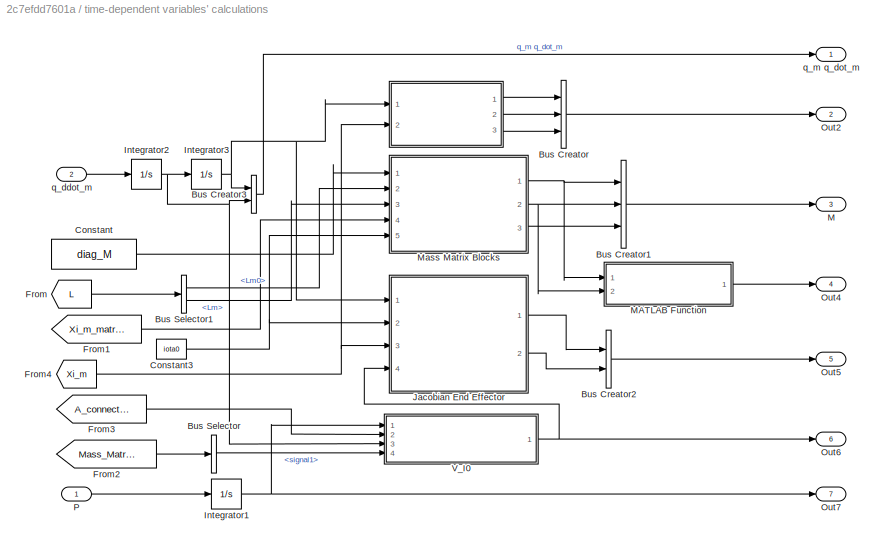
BLOCK [SubSystem] time-dependent variables' calculations
  Ports = [2, 7]
  RequestExecContextInheritance = off
BLOCK [SubSystem] time-dependent variables' calculations/ 
  ErrorFcn = Stateflow.Translate.translate
  PermitHierarchicalResolution = ExplicitOnly
  Ports = [2, 3]
  RequestExecContextInheritance = off
  SFBlockType = MATLAB Function
  TreatAsAtomicUnit = on
BLOCK [Demux] time-dependent variables' calculations/ / Demux 
  Outputs = 1
  Ports = [1, 1]
BLOCK [S-Function] time-dependent variables' calculations/ / SFunction 
  EnableBusSupport = on
  FunctionName = sf_sfun
  PortCounts = [2 4]
  Ports = [2, 4]
  SFcnIsStateOwnerBlock = off
  SFunctionDeploymentMode = off
  Tag = Stateflow S-Function 34
BLOCK [Terminator] time-dependent variables' calculations/ / Terminator 
BLOCK [Outport] time-dependent variables' calculations/ /L0
BLOCK [Outport] time-dependent variables' calculations/ /Lm
  Port = 3
BLOCK [Outport] time-dependent variables' calculations/ /Lm0
  Port = 2
BLOCK [Inport] time-dependent variables' calculations/ /Xi_m
  Port = 2
BLOCK [Inport] time-dependent variables' calculations/ /q_m
BLOCK [BusCreator] time-dependent variables' calculations/Bus Creator
  DisplayOption = bar
  InheritFromInputs = on
  Inputs = 3
  Ports = [3, 1]
BLOCK [BusCreator] time-dependent variables' calculations/Bus Creator1
  DisplayOption = bar
  InheritFromInputs = on
  Inputs = 3
  Ports = [3, 1]
BLOCK [BusCreator] time-dependent variables' calculations/Bus Creator2
  DisplayOption = bar
  InheritFromInputs = on
  Inputs = 2
  Ports = [2, 1]
BLOCK [BusCreator] time-dependent variables' calculations/Bus Creator3
  DisplayOption = bar
  InheritFromInputs = on
  Inputs = 2
  Ports = [2, 1]
BLOCK [BusSelector] time-dependent variables' calculations/Bus Selector
  OutputSignals = signal1
  Ports = [1, 1]
BLOCK [BusSelector] time-dependent variables' calculations/Bus Selector1
  OutputSignals = Lm0,Lm
  Ports = [1, 2]
BLOCK [Constant] time-dependent variables' calculations/Constant
  Value = diag_M
  VectorParams1D = off
BLOCK [Constant] time-dependent variables' calculations/Constant3
  Value = iota0
  VectorParams1D = off
BLOCK [From] time-dependent variables' calculations/From
  GotoTag = L
  TagVisibility = global
BLOCK [From] time-dependent variables' calculations/From1
  GotoTag = Xi_m_matrix
  TagVisibility = global
BLOCK [From] time-dependent variables' calculations/From2
  GotoTag = Mass_Matrix
  TagVisibility = global
BLOCK [From] time-dependent variables' calculations/From3
  GotoTag = A_connection
  TagVisibility = global
BLOCK [From] time-dependent variables' calculations/From4
  GotoTag = Xi_m
  TagVisibility = global
BLOCK [Integrator] time-dependent variables' calculations/Integrator1
  Ports = [1, 1]
BLOCK [Integrator] time-dependent variables' calculations/Integrator2
  Ports = [1, 1]
BLOCK [Integrator] time-dependent variables' calculations/Integrator3
  Ports = [1, 1]
BLOCK [SubSystem] time-dependent variables' calculations/Jacobian End Effector
  Ports = [4, 2]
  RequestExecContextInheritance = off
BLOCK [Constant] time-dependent variables' calculations/Jacobian End Effector/Constant
  Value = g_bar
BLOCK [SubSystem] time-dependent variables' calculations/Jacobian End Effector/Forward Kinematics
  ErrorFcn = Stateflow.Translate.translate
  PermitHierarchicalResolution = ExplicitOnly
  Ports = [3, 1]
  RequestExecContextInheritance = off
  SFBlockType = MATLAB Function
  TreatAsAtomicUnit = on
BLOCK [Demux] time-dependent variables' calculations/Jacobian End Effector/Forward Kinematics/ Demux 
  Outputs = 1
  Ports = [1, 1]
BLOCK [S-Function] time-dependent variables' calculations/Jacobian End Effector/Forward Kinematics/ SFunction 
  EnableBusSupport = on
  FunctionName = sf_sfun
  PortCounts = [3 2]
  Ports = [3, 2]
  SFcnIsStateOwnerBlock = off
  SFunctionDeploymentMode = off
  Tag = Stateflow S-Function 27
BLOCK [Terminator] time-dependent variables' calculations/Jacobian End Effector/Forward Kinematics/ Terminator 
BLOCK [Inport] time-dependent variables' calculations/Jacobian End Effector/Forward Kinematics/Xi_m
  Port = 2
BLOCK [Outport] time-dependent variables' calculations/Jacobian End Effector/Forward Kinematics/g_0e
BLOCK [Inport] time-dependent variables' calculations/Jacobian End Effector/Forward Kinematics/g_bar
  Port = 3
BLOCK [Inport] time-dependent variables' calculations/Jacobian End Effector/Forward Kinematics/q_m
BLOCK [Outport] time-dependent variables' calculations/Jacobian End Effector/J_e0
BLOCK [Outport] time-dependent variables' calculations/Jacobian End Effector/J_em
  Port = 2
BLOCK [SubSystem] time-dependent variables' calculations/Jacobian End Effector/Jacobian_ee
  ErrorFcn = Stateflow.Translate.translate
  PermitHierarchicalResolution = ExplicitOnly
  Ports = [5, 2]
  RequestExecContextInheritance = off
  SFBlockType = MATLAB Function
  TreatAsAtomicUnit = on
BLOCK [Demux] time-dependent variables' calculations/Jacobian End Effector/Jacobian_ee/ Demux 
  Outputs = 1
  Ports = [1, 1]
BLOCK [S-Function] time-dependent variables' calculations/Jacobian End Effector/Jacobian_ee/ SFunction 
  EnableBusSupport = on
  FunctionName = sf_sfun
  PortCounts = [5 3]
  Ports = [5, 3]
  SFcnIsStateOwnerBlock = off
  SFunctionDeploymentMode = off
  Tag = Stateflow S-Function 36
BLOCK [Terminator] time-dependent variables' calculations/Jacobian End Effector/Jacobian_ee/ Terminator 
BLOCK [Outport] time-dependent variables' calculations/Jacobian End Effector/Jacobian_ee/J_e0
BLOCK [Outport] time-dependent variables' calculations/Jacobian End Effector/Jacobian_ee/J_em
  Port = 2
BLOCK [Inport] time-dependent variables' calculations/Jacobian End Effector/Jacobian_ee/V
  Port = 3
BLOCK [Inport] time-dependent variables' calculations/Jacobian End Effector/Jacobian_ee/Xi_m
  Port = 2
BLOCK [Inport] time-dependent variables' calculations/Jacobian End Effector/Jacobian_ee/g_0e
  Port = 5
BLOCK [Inport] time-dependent variables' calculations/Jacobian End Effector/Jacobian_ee/iota0
  Port = 4
BLOCK [Inport] time-dependent variables' calculations/Jacobian End Effector/Jacobian_ee/q_m
BLOCK [Inport] time-dependent variables' calculations/Jacobian End Effector/V
  Port = 4
BLOCK [Inport] time-dependent variables' calculations/Jacobian End Effector/Xi_m
  Port = 3
BLOCK [Inport] time-dependent variables' calculations/Jacobian End Effector/iota0
  Port = 2
BLOCK [Inport] time-dependent variables' calculations/Jacobian End Effector/q_m
BLOCK [Outport] time-dependent variables' calculations/M
  Port = 3
BLOCK [SubSystem] time-dependent variables' calculations/MATLAB Function
  ErrorFcn = Stateflow.Translate.translate
  PermitHierarchicalResolution = ExplicitOnly
  Ports = [2, 1]
  RequestExecContextInheritance = off
  SFBlockType = MATLAB Function
  TreatAsAtomicUnit = on
BLOCK [Demux] time-dependent variables' calculations/MATLAB Function/ Demux 
  Outputs = 1
  Ports = [1, 1]
BLOCK [S-Function] time-dependent variables' calculations/MATLAB Function/ SFunction 
  EnableBusSupport = on
  FunctionName = sf_sfun
  PortCounts = [2 2]
  Ports = [2, 2]
  SFcnIsStateOwnerBlock = off
  SFunctionDeploymentMode = off
  Tag = Stateflow S-Function 35
BLOCK [Terminator] time-dependent variables' calculations/MATLAB Function/ Terminator 
BLOCK [Outport] time-dependent variables' calculations/MATLAB Function/A
BLOCK [Inport] time-dependent variables' calculations/MATLAB Function/M0
BLOCK [Inport] time-dependent variables' calculations/MATLAB Function/M0m
  Port = 2
BLOCK [SubSystem] time-dependent variables' calculations/Mass Matrix Blocks
  Ports = [5, 3]
  RequestExecContextInheritance = off
BLOCK [Sum] time-dependent variables' calculations/Mass Matrix Blocks/Add
  IconShape = rectangular
  Ports = [2, 1]
BLOCK [Goto] time-dependent variables' calculations/Mass Matrix Blocks/Goto5
  GotoTag = diag_Mm
  TagVisibility = global
BLOCK [Inport] time-dependent variables' calculations/Mass Matrix Blocks/Lm
  Port = 3
BLOCK [Inport] time-dependent variables' calculations/Mass Matrix Blocks/Lm0
  Port = 2
BLOCK [Outport] time-dependent variables' calculations/Mass Matrix Blocks/M0
BLOCK [Outport] time-dependent variables' calculations/Mass Matrix Blocks/M0m
  Port = 2
BLOCK [SubSystem] time-dependent variables' calculations/Mass Matrix Blocks/MATLAB Function
  ErrorFcn = Stateflow.Translate.translate
  PermitHierarchicalResolution = ExplicitOnly
  Ports = [1, 2]
  RequestExecContextInheritance = off
  SFBlockType = MATLAB Function
  TreatAsAtomicUnit = on
BLOCK [Demux] time-dependent variables' calculations/Mass Matrix Blocks/MATLAB Function/ Demux 
  Outputs = 1
  Ports = [1, 1]
BLOCK [S-Function] time-dependent variables' calculations/Mass Matrix Blocks/MATLAB Function/ SFunction 
  EnableBusSupport = on
  FunctionName = sf_sfun
  PortCounts = [1 3]
  Ports = [1, 3]
  SFcnIsStateOwnerBlock = off
  SFunctionDeploymentMode = off
  Tag = Stateflow S-Function 40
BLOCK [Terminator] time-dependent variables' calculations/Mass Matrix Blocks/MATLAB Function/ Terminator 
BLOCK [Inport] time-dependent variables' calculations/Mass Matrix Blocks/MATLAB Function/diag_M
BLOCK [Outport] time-dependent variables' calculations/Mass Matrix Blocks/MATLAB Function/m0_frak
BLOCK [Outport] time-dependent variables' calculations/Mass Matrix Blocks/MATLAB Function/m_diag
  Port = 2
BLOCK [Product] time-dependent variables' calculations/Mass Matrix Blocks/Matrix Multiply
  Inputs = 3
  Multiplication = Matrix(*)
  Ports = [3, 1]
BLOCK [Product] time-dependent variables' calculations/Mass Matrix Blocks/Matrix Multiply1
  Inputs = 5
  Multiplication = Matrix(*)
  Ports = [5, 1]
BLOCK [Product] time-dependent variables' calculations/Mass Matrix Blocks/Matrix Multiply2
  Inputs = 5
  Multiplication = Matrix(*)
  Ports = [5, 1]
BLOCK [Product] time-dependent variables' calculations/Mass Matrix Blocks/Matrix Multiply3
  Inputs = 3
  Multiplication = Matrix(*)
  Ports = [3, 1]
BLOCK [Outport] time-dependent variables' calculations/Mass Matrix Blocks/Mm
  Port = 3
BLOCK [Math] time-dependent variables' calculations/Mass Matrix Blocks/Transpose
  Operator = transpose
  Ports = [1, 1]
BLOCK [Math] time-dependent variables' calculations/Mass Matrix Blocks/Transpose1
  Operator = transpose
  Ports = [1, 1]
BLOCK [Math] time-dependent variables' calculations/Mass Matrix Blocks/Transpose2
  Operator = transpose
  Ports = [1, 1]
BLOCK [Math] time-dependent variables' calculations/Mass Matrix Blocks/Transpose3
  Operator = transpose
  Ports = [1, 1]
BLOCK [Inport] time-dependent variables' calculations/Mass Matrix Blocks/Xi_m_matrix
  Port = 4
BLOCK [Inport] time-dependent variables' calculations/Mass Matrix Blocks/diag_M
BLOCK [Inport] time-dependent variables' calculations/Mass Matrix Blocks/iota0
  Port = 5
BLOCK [Outport] time-dependent variables' calculations/Out2
  Port = 2
BLOCK [Outport] time-dependent variables' calculations/Out4
  Port = 4
BLOCK [Outport] time-dependent variables' calculations/Out5
  Port = 5
BLOCK [Outport] time-dependent variables' calculations/Out6
  Port = 6
BLOCK [Outport] time-dependent variables' calculations/Out7
  Port = 7
BLOCK [Inport] time-dependent variables' calculations/P
BLOCK [SubSystem] time-dependent variables' calculations/V_I0
  ErrorFcn = Stateflow.Translate.translate
  PermitHierarchicalResolution = ExplicitOnly
  Ports = [4, 1]
  RequestExecContextInheritance = off
  SFBlockType = MATLAB Function
  TreatAsAtomicUnit = on
BLOCK [Demux] time-dependent variables' calculations/V_I0/ Demux 
  Outputs = 1
  Ports = [1, 1]
BLOCK [S-Function] time-dependent variables' calculations/V_I0/ SFunction 
  EnableBusSupport = on
  FunctionName = sf_sfun
  PortCounts = [4 2]
  Ports = [4, 2]
  SFcnIsStateOwnerBlock = off
  SFunctionDeploymentMode = off
  Tag = Stateflow S-Function 53
BLOCK [Terminator] time-dependent variables' calculations/V_I0/ Terminator 
BLOCK [Inport] time-dependent variables' calculations/V_I0/A_connection
  Port = 2
BLOCK [Inport] time-dependent variables' calculations/V_I0/M0
  Port = 4
BLOCK [Inport] time-dependent variables' calculations/V_I0/P
BLOCK [Outport] time-dependent variables' calculations/V_I0/V_I0
BLOCK [Inport] time-dependent variables' calculations/V_I0/q_dot_m
  Port = 3
BLOCK [Inport] time-dependent variables' calculations/q_ddot_m
  Port = 2
BLOCK [Outport] time-dependent variables' calculations/q_m q_dot_m
ANNOTATION (root): Constants and Properties
ANNOTATION (root): Dynamics
ANNOTATION (root): Inputs
ANNOTATION (root): States
ANNOTATION (root): Time-Dependent Matrices' Calculation
ANNOTATION (root): User Defined Functions
ANNOTATION Inverse Dynamics/Internal Dynamics: Forces
LINE Clock:1 -> To Workspace2:1
LINE Constant1:1 -> Inverse Dynamics:3
LINE Constant2:1 -> Inverse Dynamics:4
LINE Constant3:1 -> Inverse Dynamics:6
LINE Constant4:1 -> Goto1:1
LINE Constant5:1 -> Goto:1
LINE Constant:1 -> Goto2:1
LINE Differential Kinematics/Demux:1 -> Differential Kinematics/MATLAB Function:2
LINE Differential Kinematics/Demux:2 -> Differential Kinematics/MATLAB Function:3
LINE Differential Kinematics/From1:1 -> Differential Kinematics/MATLAB Function:4
LINE Differential Kinematics/From:1 -> Differential Kinematics/Demux:1
LINE Differential Kinematics/MATLAB Function:1 -> Differential Kinematics/V_Ie:1
LINE Differential Kinematics/q_dot_m:1 -> Differential Kinematics/MATLAB Function:1
LINE From1:1 -> Inverse Dynamics:2
LINE From2:1 -> Inverse Dynamics:1
LINE From3:1 -> Inverse Dynamics:5
LINE Inverse Dynamics/Euler Poincare/Add:1 -> Inverse Dynamics/Euler Poincare/P_dot:1
LINE Inverse Dynamics/Euler Poincare/Bus Selector:1 -> Inverse Dynamics/Euler Poincare/Transpose1:1
LINE Inverse Dynamics/Euler Poincare/Constant:1 -> Inverse Dynamics/Euler Poincare/MATLAB Function:2
LINE Inverse Dynamics/Euler Poincare/From:1 -> Inverse Dynamics/Euler Poincare/Bus Selector:1
LINE Inverse Dynamics/Euler Poincare/MATLAB Function:1 -> Inverse Dynamics/Euler Poincare/Transpose:1
LINE Inverse Dynamics/Euler Poincare/Matrix Multiply1:1 -> Inverse Dynamics/Euler Poincare/Add:3
LINE Inverse Dynamics/Euler Poincare/Matrix Multiply:1 -> Inverse Dynamics/Euler Poincare/Add:1
LINE Inverse Dynamics/Euler Poincare/P:1 -> Inverse Dynamics/Euler Poincare/Matrix Multiply:2
LINE Inverse Dynamics/Euler Poincare/Transpose1:1 -> Inverse Dynamics/Euler Poincare/Matrix Multiply1:1
NET Inverse Dynamics/Euler Poincare/Transpose:1 -> Inverse Dynamics/Euler Poincare/Matrix Multiply:1, Inverse Dynamics/Euler Poincare/To Workspace:1
LINE Inverse Dynamics/Euler Poincare/V:1 -> Inverse Dynamics/Euler Poincare/MATLAB Function:1
LINE Inverse Dynamics/Euler Poincare/f_0:1 -> Inverse Dynamics/Euler Poincare/Add:2
LINE Inverse Dynamics/Euler Poincare/f_e:1 -> Inverse Dynamics/Euler Poincare/Matrix Multiply1:2
LINE Inverse Dynamics/Euler Poincare:1 -> Inverse Dynamics/P_dot:1
LINE Inverse Dynamics/Internal Dynamics/Add1:1 -> Inverse Dynamics/Internal Dynamics/Add:3
LINE Inverse Dynamics/Internal Dynamics/Add:1 -> Inverse Dynamics/Internal Dynamics/Divide:2
LINE Inverse Dynamics/Internal Dynamics/Bus Selector2:1 -> Inverse Dynamics/Internal Dynamics/Transpose1:1
LINE Inverse Dynamics/Internal Dynamics/Bus Selector2:2 -> Inverse Dynamics/Internal Dynamics/Transpose:1
NET Inverse Dynamics/Internal Dynamics/Bus Selector3:1 -> Inverse Dynamics/Internal Dynamics/C_hat:1, Inverse Dynamics/Internal Dynamics/N_hat:1
NET Inverse Dynamics/Internal Dynamics/Bus Selector3:2 -> Inverse Dynamics/Internal Dynamics/C_hat:2, Inverse Dynamics/Internal Dynamics/Matrix Multiply3:2, Inverse Dynamics/Internal Dynamics/N_hat:2
LINE Inverse Dynamics/Internal Dynamics/Bus Selector4:1 -> Inverse Dynamics/Internal Dynamics/C_hat:9
LINE Inverse Dynamics/Internal Dynamics/Bus Selector4:2 -> Inverse Dynamics/Internal Dynamics/C_hat:10
NET Inverse Dynamics/Internal Dynamics/Bus Selector:1 -> Inverse Dynamics/Internal Dynamics/C_hat:5, Inverse Dynamics/Internal Dynamics/M_hat:1
LINE Inverse Dynamics/Internal Dynamics/Bus Selector:2 -> Inverse Dynamics/Internal Dynamics/C_hat:6
LINE Inverse Dynamics/Internal Dynamics/Bus Selector:3 -> Inverse Dynamics/Internal Dynamics/M_hat:2
LINE Inverse Dynamics/Internal Dynamics/C_hat/<Lm0>:1 -> Inverse Dynamics/Internal Dynamics/C_hat/M_partials:7
LINE Inverse Dynamics/Internal Dynamics/C_hat/<Lm>:1 -> Inverse Dynamics/Internal Dynamics/C_hat/M_partials:6
LINE Inverse Dynamics/Internal Dynamics/C_hat/A:1 -> Inverse Dynamics/Internal Dynamics/C_hat/MATLAB Function6:3
LINE Inverse Dynamics/Internal Dynamics/C_hat/C_hat:1 -> Inverse Dynamics/Internal Dynamics/C_hat/C_hat1:1
NET Inverse Dynamics/Internal Dynamics/C_hat/Lm_partials/Constant:1 -> Inverse Dynamics/Internal Dynamics/C_hat/Lm_partials/Lm0partial:3, Inverse Dynamics/Internal Dynamics/C_hat/Lm_partials/Lmpartial:3
LINE Inverse Dynamics/Internal Dynamics/C_hat/Lm_partials/Lm0partial:1 -> Inverse Dynamics/Internal Dynamics/C_hat/Lm_partials/Lm0_partial:1
LINE Inverse Dynamics/Internal Dynamics/C_hat/Lm_partials/Lmpartial:1 -> Inverse Dynamics/Internal Dynamics/C_hat/Lm_partials/Lm_partial:1
NET Inverse Dynamics/Internal Dynamics/C_hat/Lm_partials/Xi_m:1 -> Inverse Dynamics/Internal Dynamics/C_hat/Lm_partials/Lm0partial:2, Inverse Dynamics/Internal Dynamics/C_hat/Lm_partials/Lmpartial:2
NET Inverse Dynamics/Internal Dynamics/C_hat/Lm_partials/q_m:1 -> Inverse Dynamics/Internal Dynamics/C_hat/Lm_partials/Lm0partial:1, Inverse Dynamics/Internal Dynamics/C_hat/Lm_partials/Lmpartial:1
LINE Inverse Dynamics/Internal Dynamics/C_hat/Lm_partials:1 -> Inverse Dynamics/Internal Dynamics/C_hat/M_partials:2
LINE Inverse Dynamics/Internal Dynamics/C_hat/Lm_partials:2 -> Inverse Dynamics/Internal Dynamics/C_hat/M_partials:4
NET Inverse Dynamics/Internal Dynamics/C_hat/M0:1 -> Inverse Dynamics/Internal Dynamics/C_hat/MATLAB Function4:2, Inverse Dynamics/Internal Dynamics/C_hat/MATLAB Function6:2
LINE Inverse Dynamics/Internal Dynamics/C_hat/M0m:1 -> Inverse Dynamics/Internal Dynamics/C_hat/MATLAB Function4:3
NET Inverse Dynamics/Internal Dynamics/C_hat/MATLAB Function4:1 -> Inverse Dynamics/Internal Dynamics/C_hat/Goto1:1, Inverse Dynamics/Internal Dynamics/C_hat/MATLAB Function6:6
LINE Inverse Dynamics/Internal Dynamics/C_hat/MATLAB Function6:1 -> Inverse Dynamics/Internal Dynamics/C_hat/MATLAB Function7:3
LINE Inverse Dynamics/Internal Dynamics/C_hat/MATLAB Function7:1 -> Inverse Dynamics/Internal Dynamics/C_hat/C_hat:3
LINE Inverse Dynamics/Internal Dynamics/C_hat/M_partials/ M0partial:1 -> Inverse Dynamics/Internal Dynamics/C_hat/M_partials/M0_partial:1
NET Inverse Dynamics/Internal Dynamics/C_hat/M_partials/Lm0:1 -> Inverse Dynamics/Internal Dynamics/C_hat/M_partials/ M0partial:2, Inverse Dynamics/Internal Dynamics/C_hat/M_partials/M0mpartial:3
NET Inverse Dynamics/Internal Dynamics/C_hat/M_partials/Lm0_partial:1 -> Inverse Dynamics/Internal Dynamics/C_hat/M_partials/ M0partial:6, Inverse Dynamics/Internal Dynamics/C_hat/M_partials/M0mpartial:6
LINE Inverse Dynamics/Internal Dynamics/C_hat/M_partials/Lm:1 -> Inverse Dynamics/Internal Dynamics/C_hat/M_partials/Mmpartial:3
NET Inverse Dynamics/Internal Dynamics/C_hat/M_partials/Lm_partial:1 -> Inverse Dynamics/Internal Dynamics/C_hat/M_partials/M0mpartial:7, Inverse Dynamics/Internal Dynamics/C_hat/M_partials/Mmpartial:5
LINE Inverse Dynamics/Internal Dynamics/C_hat/M_partials/M0mpartial:1 -> Inverse Dynamics/Internal Dynamics/C_hat/M_partials/M0m_partial:1
LINE Inverse Dynamics/Internal Dynamics/C_hat/M_partials/Mmpartial:1 -> Inverse Dynamics/Internal Dynamics/C_hat/M_partials/Mm_partial:1
NET Inverse Dynamics/Internal Dynamics/C_hat/M_partials/V:1 -> Inverse Dynamics/Internal Dynamics/C_hat/M_partials/ M0partial:3, Inverse Dynamics/Internal Dynamics/C_hat/M_partials/M0mpartial:2
LINE Inverse Dynamics/Internal Dynamics/C_hat/M_partials/Xi_m_Matrix:1 -> Inverse Dynamics/Internal Dynamics/C_hat/M_partials/Mmpartial:2
NET Inverse Dynamics/Internal Dynamics/C_hat/M_partials/diag_Mm:1 -> Inverse Dynamics/Internal Dynamics/C_hat/M_partials/ M0partial:5, Inverse Dynamics/Internal Dynamics/C_hat/M_partials/M0mpartial:5, Inverse Dynamics/Internal Dynamics/C_hat/M_partials/Mmpartial:4
NET Inverse Dynamics/Internal Dynamics/C_hat/M_partials/iota0:1 -> Inverse Dynamics/Internal Dynamics/C_hat/M_partials/ M0partial:4, Inverse Dynamics/Internal Dynamics/C_hat/M_partials/M0mpartial:4
NET Inverse Dynamics/Internal Dynamics/C_hat/M_partials/q_m:1 -> Inverse Dynamics/Internal Dynamics/C_hat/M_partials/ M0partial:1, Inverse Dynamics/Internal Dynamics/C_hat/M_partials/M0mpartial:1, Inverse Dynamics/Internal Dynamics/C_hat/M_partials/Mmpartial:1
LINE Inverse Dynamics/Internal Dynamics/C_hat/M_partials:1 -> Inverse Dynamics/Internal Dynamics/C_hat/MATLAB Function7:2
NET Inverse Dynamics/Internal Dynamics/C_hat/M_partials:2 -> Inverse Dynamics/Internal Dynamics/C_hat/Goto2:1, Inverse Dynamics/Internal Dynamics/C_hat/MATLAB Function4:5, Inverse Dynamics/Internal Dynamics/C_hat/MATLAB Function6:5
LINE Inverse Dynamics/Internal Dynamics/C_hat/M_partials:3 -> Inverse Dynamics/Internal Dynamics/C_hat/MATLAB Function4:6
NET Inverse Dynamics/Internal Dynamics/C_hat/V_I0:1 -> Inverse Dynamics/Internal Dynamics/C_hat/MATLAB Function4:4, Inverse Dynamics/Internal Dynamics/C_hat/MATLAB Function6:4, Inverse Dynamics/Internal Dynamics/C_hat/M_partials:3
LINE Inverse Dynamics/Internal Dynamics/C_hat/Xi_m:1 -> Inverse Dynamics/Internal Dynamics/C_hat/Lm_partials:2
LINE Inverse Dynamics/Internal Dynamics/C_hat/Xi_m_Matrix:1 -> Inverse Dynamics/Internal Dynamics/C_hat/M_partials:5
LINE Inverse Dynamics/Internal Dynamics/C_hat/diag_Mm:1 -> Inverse Dynamics/Internal Dynamics/C_hat/M_partials:9
LINE Inverse Dynamics/Internal Dynamics/C_hat/iota0:1 -> Inverse Dynamics/Internal Dynamics/C_hat/M_partials:8
LINE Inverse Dynamics/Internal Dynamics/C_hat/q_dot_m:1 -> Inverse Dynamics/Internal Dynamics/C_hat/C_hat:2
NET Inverse Dynamics/Internal Dynamics/C_hat/q_m:1 -> Inverse Dynamics/Internal Dynamics/C_hat/C_hat:1, Inverse Dynamics/Internal Dynamics/C_hat/Lm_partials:1, Inverse Dynamics/Internal Dynamics/C_hat/MATLAB Function4:1, Inverse Dynamics/Internal Dynamics/C_hat/MATLAB Function6:1, Inverse Dynamics/Internal Dynamics/C_hat/MATLAB Function7:1, Inverse Dynamics/Internal Dynamics/C_hat/M_partials:1
LINE Inverse Dynamics/Internal Dynamics/C_hat:1 -> Inverse Dynamics/Internal Dynamics/Matrix Multiply3:1
LINE Inverse Dynamics/Internal Dynamics/Constant:1 -> Inverse Dynamics/Internal Dynamics/C_hat:11
LINE Inverse Dynamics/Internal Dynamics/Divide:1 -> Inverse Dynamics/Internal Dynamics/q_ddot:1
NET Inverse Dynamics/Internal Dynamics/From1:1 -> Inverse Dynamics/Internal Dynamics/M_hat:3, Inverse Dynamics/Internal Dynamics/Transpose2:1
NET Inverse Dynamics/Internal Dynamics/From3:1 -> Inverse Dynamics/Internal Dynamics/C_hat:7, Inverse Dynamics/Internal Dynamics/N_hat:3
LINE Inverse Dynamics/Internal Dynamics/From4:1 -> Inverse Dynamics/Internal Dynamics/Bus Selector4:1
LINE Inverse Dynamics/Internal Dynamics/From5:1 -> Inverse Dynamics/Internal Dynamics/C_hat:3
LINE Inverse Dynamics/Internal Dynamics/From6:1 -> Inverse Dynamics/Internal Dynamics/C_hat:4
LINE Inverse Dynamics/Internal Dynamics/From7:1 -> Inverse Dynamics/Internal Dynamics/Bus Selector:1
LINE Inverse Dynamics/Internal Dynamics/From8:1 -> Inverse Dynamics/Internal Dynamics/C_hat:12
LINE Inverse Dynamics/Internal Dynamics/From:1 -> Inverse Dynamics/Internal Dynamics/Bus Selector2:1
LINE Inverse Dynamics/Internal Dynamics/M_hat:1 -> Inverse Dynamics/Internal Dynamics/Divide:1
LINE Inverse Dynamics/Internal Dynamics/Matrix Multiply1:1 -> Inverse Dynamics/Internal Dynamics/Add1:2
LINE Inverse Dynamics/Internal Dynamics/Matrix Multiply2:1 -> Inverse Dynamics/Internal Dynamics/Add1:1
LINE Inverse Dynamics/Internal Dynamics/Matrix Multiply3:1 -> Inverse Dynamics/Internal Dynamics/Add:1
LINE Inverse Dynamics/Internal Dynamics/Matrix Multiply:1 -> Inverse Dynamics/Internal Dynamics/Add1:3
LINE Inverse Dynamics/Internal Dynamics/N_hat/A:1 -> Inverse Dynamics/Internal Dynamics/N_hat/N_hat:3
LINE Inverse Dynamics/Internal Dynamics/N_hat/Constant:1 -> Inverse Dynamics/Internal Dynamics/N_hat/N_hat:8
LINE Inverse Dynamics/Internal Dynamics/N_hat/From1:1 -> Inverse Dynamics/Internal Dynamics/N_hat/N_hat:6
LINE Inverse Dynamics/Internal Dynamics/N_hat/From:1 -> Inverse Dynamics/Internal Dynamics/N_hat/N_hat:7
LINE Inverse Dynamics/Internal Dynamics/N_hat/N_hat:1 -> Inverse Dynamics/Internal Dynamics/N_hat/N_hat1:1
LINE Inverse Dynamics/Internal Dynamics/N_hat/P:1 -> Inverse Dynamics/Internal Dynamics/N_hat/N_hat:5
LINE Inverse Dynamics/Internal Dynamics/N_hat/V_I0:1 -> Inverse Dynamics/Internal Dynamics/N_hat/N_hat:4
LINE Inverse Dynamics/Internal Dynamics/N_hat/q_dot_m:1 -> Inverse Dynamics/Internal Dynamics/N_hat/N_hat:2
LINE Inverse Dynamics/Internal Dynamics/N_hat/q_m:1 -> Inverse Dynamics/Internal Dynamics/N_hat/N_hat:1
LINE Inverse Dynamics/Internal Dynamics/N_hat:1 -> Inverse Dynamics/Internal Dynamics/Add:2
LINE Inverse Dynamics/Internal Dynamics/P:1 -> Inverse Dynamics/Internal Dynamics/N_hat:5
LINE Inverse Dynamics/Internal Dynamics/Transpose1:1 -> Inverse Dynamics/Internal Dynamics/Matrix Multiply1:2
NET Inverse Dynamics/Internal Dynamics/Transpose2:1 -> Inverse Dynamics/Internal Dynamics/Matrix Multiply1:1, Inverse Dynamics/Internal Dynamics/Matrix Multiply2:1
LINE Inverse Dynamics/Internal Dynamics/Transpose:1 -> Inverse Dynamics/Internal Dynamics/Matrix Multiply:1
NET Inverse Dynamics/Internal Dynamics/V:1 -> Inverse Dynamics/Internal Dynamics/C_hat:8, Inverse Dynamics/Internal Dynamics/N_hat:4
LINE Inverse Dynamics/Internal Dynamics/f_0:1 -> Inverse Dynamics/Internal Dynamics/Matrix Multiply2:2
NET Inverse Dynamics/Internal Dynamics/f_e:1 -> Inverse Dynamics/Internal Dynamics/Matrix Multiply1:3, Inverse Dynamics/Internal Dynamics/Matrix Multiply:2
LINE Inverse Dynamics/Internal Dynamics/f_m:1 -> Inverse Dynamics/Internal Dynamics/Add1:4
LINE Inverse Dynamics/Internal Dynamics/q_m q_dot_m:1 -> Inverse Dynamics/Internal Dynamics/Bus Selector3:1
LINE Inverse Dynamics/Internal Dynamics:1 -> Inverse Dynamics/q_ddot:1
NET Inverse Dynamics/P:1 -> Inverse Dynamics/Euler Poincare:1, Inverse Dynamics/Internal Dynamics:2
NET Inverse Dynamics/V:1 -> Inverse Dynamics/Euler Poincare:2, Inverse Dynamics/Internal Dynamics:3
NET Inverse Dynamics/f_0:1 -> Inverse Dynamics/Euler Poincare:3, Inverse Dynamics/Internal Dynamics:4
NET Inverse Dynamics/f_e:1 -> Inverse Dynamics/Euler Poincare:4, Inverse Dynamics/Internal Dynamics:5
LINE Inverse Dynamics/f_m:1 -> Inverse Dynamics/Internal Dynamics:6
LINE Inverse Dynamics/q_m q_dot_m:1 -> Inverse Dynamics/Internal Dynamics:1
LINE Inverse Dynamics:1 -> time-dependent variables' calculations:1
LINE Inverse Dynamics:2 -> time-dependent variables' calculations:2
LINE Jacobian/MATLAB Function:1 -> Jacobian/J_e0:1
LINE Jacobian/g_I0:1 -> Jacobian/MATLAB Function:1
LINE Jacobian/q_m:1 -> Jacobian/MATLAB Function:2
LINE Simulink Function/Constant:1 -> Simulink Function/MATLAB Function:4
LINE Simulink Function/MATLAB Function:1 -> Simulink Function/g_Ie:1
LINE Simulink Function/g_I0:1 -> Simulink Function/MATLAB Function:1
LINE Simulink Function/q_m:1 -> Simulink Function/MATLAB Function:2
LINE Simulink Function/xi_m:1 -> Simulink Function/MATLAB Function:3
LINE Simulink Function1/Demux:1 -> Simulink Function1/MATLAB Function:5
LINE Simulink Function1/Demux:2 -> Simulink Function1/MATLAB Function:6
LINE Simulink Function1/Demux:3 -> Simulink Function1/Terminator:1
LINE Simulink Function1/From1:1 -> Simulink Function1/MATLAB Function:7
LINE Simulink Function1/From5:1 -> Simulink Function1/MATLAB Function:3
LINE Simulink Function1/From6:1 -> Simulink Function1/MATLAB Function:4
LINE Simulink Function1/From:1 -> Simulink Function1/Demux:1
LINE Simulink Function1/MATLAB Function:1 -> Simulink Function1/N_hat~:1
LINE Simulink Function1/P:1 -> Simulink Function1/MATLAB Function:9
LINE Simulink Function1/V_I0:1 -> Simulink Function1/MATLAB Function:8
LINE Simulink Function1/q_dot_m:1 -> Simulink Function1/MATLAB Function:2
LINE Simulink Function1/q_m:1 -> Simulink Function1/MATLAB Function:1
LINE Simulink Function10/A:1 -> Simulink Function10/MATLAB Function:3
LINE Simulink Function10/M0:1 -> Simulink Function10/MATLAB Function:1
LINE Simulink Function10/M0m:1 -> Simulink Function10/MATLAB Function:2
LINE Simulink Function10/MATLAB Function:1 -> Simulink Function10/M_hat~:1
LINE Simulink Function11/MATLAB Function:1 -> Simulink Function11/Mux:1
LINE Simulink Function11/MATLAB Function:2 -> Simulink Function11/Mux:2
LINE Simulink Function11/Mux:1 -> Simulink Function11/Jacobian_total~:1
LINE Simulink Function11/Xi_m:1 -> Simulink Function11/MATLAB Function:2
LINE Simulink Function11/q_m:1 -> Simulink Function11/MATLAB Function:1
LINE Simulink Function12/Constant1:1 -> Simulink Function12/MATLAB Function:2
LINE Simulink Function12/Constant2:1 -> Simulink Function12/MATLAB Function:3
LINE Simulink Function12/Constant:1 -> Simulink Function12/MATLAB Function:1
LINE Simulink Function12/MATLAB Function1:1 -> Simulink Function12/diag_M~:1
LINE Simulink Function12/MATLAB Function:1 -> Simulink Function12/MATLAB Function1:1
LINE Simulink Function12/MATLAB Function:2 -> Simulink Function12/MATLAB Function1:2
LINE Simulink Function13/ :1 -> Simulink Function13/Mux:1
LINE Simulink Function13/ :2 -> Simulink Function13/Mux:2
LINE Simulink Function13/ :3 -> Simulink Function13/Mux:3
LINE Simulink Function13/Mux:1 -> Simulink Function13/L:1
LINE Simulink Function13/Xi_m:1 -> Simulink Function13/ :2
LINE Simulink Function13/q_m:1 -> Simulink Function13/ :1
LINE Simulink Function14/A:1 -> Simulink Function14/MATLAB Function1:1
LINE Simulink Function14/MATLAB Function1:1 -> Simulink Function14/A_inv:1
LINE Simulink Function15/MATLAB Function1:1 -> Simulink Function15/g:1
LINE Simulink Function15/Xi:1 -> Simulink Function15/MATLAB Function1:1
LINE Simulink Function15/qm:1 -> Simulink Function15/MATLAB Function1:2
LINE Simulink Function16/MATLAB Function:1 -> Simulink Function16/y:1
LINE Simulink Function16/u:1 -> Simulink Function16/MATLAB Function:1
LINE Simulink Function2/Constant3:1 -> Simulink Function2/Mass Matrix Blocks:5
LINE Simulink Function2/Constant:1 -> Simulink Function2/Mass Matrix Blocks:1
LINE Simulink Function2/Demux:1 -> Simulink Function2/Terminator:1
LINE Simulink Function2/Demux:2 -> Simulink Function2/Mass Matrix Blocks:2
LINE Simulink Function2/Demux:3 -> Simulink Function2/Mass Matrix Blocks:3
LINE Simulink Function2/From1:1 -> Simulink Function2/Mass Matrix Blocks:4
LINE Simulink Function2/From:1 -> Simulink Function2/Demux:1
LINE Simulink Function2/Mass Matrix Blocks/Add:1 -> Simulink Function2/Mass Matrix Blocks/Matrix Multiply:2
NET Simulink Function2/Mass Matrix Blocks/Lm0:1 -> Simulink Function2/Mass Matrix Blocks/Matrix Multiply3:3, Simulink Function2/Mass Matrix Blocks/Transpose3:1
NET Simulink Function2/Mass Matrix Blocks/Lm:1 -> Simulink Function2/Mass Matrix Blocks/Matrix Multiply1:4, Simulink Function2/Mass Matrix Blocks/Matrix Multiply2:4, Simulink Function2/Mass Matrix Blocks/Transpose2:1
LINE Simulink Function2/Mass Matrix Blocks/MATLAB Function:1 -> Simulink Function2/Mass Matrix Blocks/Add:1
NET Simulink Function2/Mass Matrix Blocks/MATLAB Function:2 -> Simulink Function2/Mass Matrix Blocks/Matrix Multiply1:3, Simulink Function2/Mass Matrix Blocks/Matrix Multiply2:3, Simulink Function2/Mass Matrix Blocks/Matrix Multiply3:2
LINE Simulink Function2/Mass Matrix Blocks/Matrix Multiply1:1 -> Simulink Function2/Mass Matrix Blocks/M0m:1
LINE Simulink Function2/Mass Matrix Blocks/Matrix Multiply2:1 -> Simulink Function2/Mass Matrix Blocks/Mm:1
LINE Simulink Function2/Mass Matrix Blocks/Matrix Multiply3:1 -> Simulink Function2/Mass Matrix Blocks/Add:2
LINE Simulink Function2/Mass Matrix Blocks/Matrix Multiply:1 -> Simulink Function2/Mass Matrix Blocks/M0:1
LINE Simulink Function2/Mass Matrix Blocks/Transpose1:1 -> Simulink Function2/Mass Matrix Blocks/Matrix Multiply2:1
LINE Simulink Function2/Mass Matrix Blocks/Transpose2:1 -> Simulink Function2/Mass Matrix Blocks/Matrix Multiply2:2
NET Simulink Function2/Mass Matrix Blocks/Transpose3:1 -> Simulink Function2/Mass Matrix Blocks/Matrix Multiply1:2, Simulink Function2/Mass Matrix Blocks/Matrix Multiply3:1
NET Simulink Function2/Mass Matrix Blocks/Transpose:1 -> Simulink Function2/Mass Matrix Blocks/Matrix Multiply1:1, Simulink Function2/Mass Matrix Blocks/Matrix Multiply:1
NET Simulink Function2/Mass Matrix Blocks/Xi_m_matrix:1 -> Simulink Function2/Mass Matrix Blocks/Matrix Multiply1:5, Simulink Function2/Mass Matrix Blocks/Matrix Multiply2:5, Simulink Function2/Mass Matrix Blocks/Transpose1:1
LINE Simulink Function2/Mass Matrix Blocks/diag_M:1 -> Simulink Function2/Mass Matrix Blocks/MATLAB Function:1
NET Simulink Function2/Mass Matrix Blocks/iota0:1 -> Simulink Function2/Mass Matrix Blocks/Matrix Multiply:3, Simulink Function2/Mass Matrix Blocks/Transpose:1
LINE Simulink Function2/Mass Matrix Blocks:1 -> Simulink Function2/M0:1
LINE Simulink Function2/Mass Matrix Blocks:2 -> Simulink Function2/M0m:1
LINE Simulink Function2/Mass Matrix Blocks:3 -> Simulink Function2/Mm:1
LINE Simulink Function2/diag M_frak/MATLAB Function1:1 -> Simulink Function2/diag M_frak/diag_M:1
LINE Simulink Function2/diag M_frak/Subsystem/From:1 -> Simulink Function2/diag M_frak/Subsystem/M_frak array:5
LINE Simulink Function2/diag M_frak/Subsystem/M_frak array:1 -> Simulink Function2/diag M_frak/Subsystem/M_frak array1:1
LINE Simulink Function2/diag M_frak/Subsystem/m0:1 -> Simulink Function2/diag M_frak/Subsystem/M_frak array:3
LINE Simulink Function2/diag M_frak/Subsystem/mm:1 -> Simulink Function2/diag M_frak/Subsystem/M_frak array:1
LINE Simulink Function2/diag M_frak/Subsystem:1 -> Simulink Function2/diag M_frak/MATLAB Function1:1
LINE Simulink Function3/MATLAB Function:1 -> Simulink Function3/Mux:1
LINE Simulink Function3/MATLAB Function:2 -> Simulink Function3/Mux:2
LINE Simulink Function3/Mux:1 -> Simulink Function3/Jacobian_end_effector~:1
LINE Simulink Function3/Xi_m:1 -> Simulink Function3/MATLAB Function:2
LINE Simulink Function3/q_m:1 -> Simulink Function3/MATLAB Function:1
LINE Simulink Function4/Demux:1 -> Simulink Function4/MATLAB Function:4
LINE Simulink Function4/Demux:2 -> Simulink Function4/MATLAB Function:5
LINE Simulink Function4/Demux:3 -> Simulink Function4/Terminator:1
LINE Simulink Function4/From1:1 -> Simulink Function4/Demux:1
LINE Simulink Function4/From2:1 -> Simulink Function4/MATLAB Function:6
LINE Simulink Function4/From:1 -> Simulink Function4/MATLAB Function:3
LINE Simulink Function4/MATLAB Function:1 -> Simulink Function4/C_hat~:1
LINE Simulink Function4/V_I0:1 -> Simulink Function4/MATLAB Function:7
LINE Simulink Function4/q_dot_m:1 -> Simulink Function4/MATLAB Function:2
LINE Simulink Function4/q_m:1 -> Simulink Function4/MATLAB Function:1
LINE Simulink Function5/M0:1 -> Simulink Function5/MATLAB Function:1
LINE Simulink Function5/M0m:1 -> Simulink Function5/MATLAB Function:2
LINE Simulink Function5/MATLAB Function:1 -> Simulink Function5/A_connection~:1
LINE Simulink Function6/MATLAB Function:1 -> Simulink Function6/M0:1
LINE Simulink Function6/MATLAB Function:2 -> Simulink Function6/M0m:1
LINE Simulink Function6/MATLAB Function:3 -> Simulink Function6/Mm:1
LINE Simulink Function6/g_I0:1 -> Simulink Function6/MATLAB Function:1
LINE Simulink Function6/q_m:1 -> Simulink Function6/MATLAB Function:7
LINE Simulink Function6/xi_m:1 -> Simulink Function6/MATLAB Function:8
LINE Simulink Function7/Demux:1 -> Simulink Function7/MATLAB Function:4
LINE Simulink Function7/Demux:2 -> Simulink Function7/Terminator:1
LINE Simulink Function7/Demux:3 -> Simulink Function7/Terminator1:1
LINE Simulink Function7/From1:1 -> Simulink Function7/MATLAB Function:2
LINE Simulink Function7/From:1 -> Simulink Function7/Demux:1
LINE Simulink Function7/MATLAB Function:1 -> Simulink Function7/V_I0~:1
LINE Simulink Function7/P:1 -> Simulink Function7/MATLAB Function:1
LINE Simulink Function7/q_dot_m:1 -> Simulink Function7/MATLAB Function:3
LINE Simulink Function8/MATLAB Function:1 -> Simulink Function8/P:1
LINE Simulink Function8/g_I0:1 -> Simulink Function8/MATLAB Function:1
LINE Simulink Function8/mu:1 -> Simulink Function8/MATLAB Function:2
LINE Simulink Function9/MATLAB Function:1 -> Simulink Function9/M0:1
LINE Simulink Function9/MATLAB Function:2 -> Simulink Function9/M0m:1
LINE Simulink Function9/MATLAB Function:3 -> Simulink Function9/Mm:1
LINE Simulink Function9/q_m:1 -> Simulink Function9/MATLAB Function:1
LINE Simulink Function9/xi_m:1 -> Simulink Function9/MATLAB Function:2
LINE time-dependent variables' calculations/ :1 -> time-dependent variables' calculations/Bus Creator:1
LINE time-dependent variables' calculations/ :2 -> time-dependent variables' calculations/Bus Creator:2
LINE time-dependent variables' calculations/ :3 -> time-dependent variables' calculations/Bus Creator:3
LINE time-dependent variables' calculations/Bus Creator1:1 -> time-dependent variables' calculations/M:1
LINE time-dependent variables' calculations/Bus Creator2:1 -> time-dependent variables' calculations/Out5:1
LINE time-dependent variables' calculations/Bus Creator3:1 -> time-dependent variables' calculations/q_m q_dot_m:1
LINE time-dependent variables' calculations/Bus Creator:1 -> time-dependent variables' calculations/Out2:1
LINE time-dependent variables' calculations/Bus Selector1:1 -> time-dependent variables' calculations/Mass Matrix Blocks:2
LINE time-dependent variables' calculations/Bus Selector1:2 -> time-dependent variables' calculations/Mass Matrix Blocks:3
LINE time-dependent variables' calculations/Bus Selector:1 -> time-dependent variables' calculations/V_I0:4
NET time-dependent variables' calculations/Constant3:1 -> time-dependent variables' calculations/Jacobian End Effector:2, time-dependent variables' calculations/Mass Matrix Blocks:5
LINE time-dependent variables' calculations/Constant:1 -> time-dependent variables' calculations/Mass Matrix Blocks:1
LINE time-dependent variables' calculations/From1:1 -> time-dependent variables' calculations/Mass Matrix Blocks:4
LINE time-dependent variables' calculations/From2:1 -> time-dependent variables' calculations/Bus Selector:1
LINE time-dependent variables' calculations/From3:1 -> time-dependent variables' calculations/V_I0:2
NET time-dependent variables' calculations/From4:1 -> time-dependent variables' calculations/ :2, time-dependent variables' calculations/Jacobian End Effector:3
LINE time-dependent variables' calculations/From:1 -> time-dependent variables' calculations/Bus Selector1:1
NET time-dependent variables' calculations/Integrator1:1 -> time-dependent variables' calculations/Out7:1, time-dependent variables' calculations/V_I0:1
NET time-dependent variables' calculations/Integrator2:1 -> time-dependent variables' calculations/Bus Creator3:2, time-dependent variables' calculations/Integrator3:1, time-dependent variables' calculations/V_I0:3
NET time-dependent variables' calculations/Integrator3:1 -> time-dependent variables' calculations/ :1, time-dependent variables' calculations/Bus Creator3:1, time-dependent variables' calculations/Jacobian End Effector:1
LINE time-dependent variables' calculations/Jacobian End Effector/Constant:1 -> time-dependent variables' calculations/Jacobian End Effector/Forward Kinematics:3
LINE time-dependent variables' calculations/Jacobian End Effector/Forward Kinematics:1 -> time-dependent variables' calculations/Jacobian End Effector/Jacobian_ee:5
LINE time-dependent variables' calculations/Jacobian End Effector/Jacobian_ee:1 -> time-dependent variables' calculations/Jacobian End Effector/J_e0:1
LINE time-dependent variables' calculations/Jacobian End Effector/Jacobian_ee:2 -> time-dependent variables' calculations/Jacobian End Effector/J_em:1
LINE time-dependent variables' calculations/Jacobian End Effector/V:1 -> time-dependent variables' calculations/Jacobian End Effector/Jacobian_ee:3
NET time-dependent variables' calculations/Jacobian End Effector/Xi_m:1 -> time-dependent variables' calculations/Jacobian End Effector/Forward Kinematics:2, time-dependent variables' calculations/Jacobian End Effector/Jacobian_ee:2
LINE time-dependent variables' calculations/Jacobian End Effector/iota0:1 -> time-dependent variables' calculations/Jacobian End Effector/Jacobian_ee:4
NET time-dependent variables' calculations/Jacobian End Effector/q_m:1 -> time-dependent variables' calculations/Jacobian End Effector/Forward Kinematics:1, time-dependent variables' calculations/Jacobian End Effector/Jacobian_ee:1
LINE time-dependent variables' calculations/Jacobian End Effector:1 -> time-dependent variables' calculations/Bus Creator2:1
LINE time-dependent variables' calculations/Jacobian End Effector:2 -> time-dependent variables' calculations/Bus Creator2:2
LINE time-dependent variables' calculations/MATLAB Function:1 -> time-dependent variables' calculations/Out4:1
LINE time-dependent variables' calculations/Mass Matrix Blocks/Add:1 -> time-dependent variables' calculations/Mass Matrix Blocks/Matrix Multiply:2
NET time-dependent variables' calculations/Mass Matrix Blocks/Lm0:1 -> time-dependent variables' calculations/Mass Matrix Blocks/Matrix Multiply3:3, time-dependent variables' calculations/Mass Matrix Blocks/Transpose3:1
NET time-dependent variables' calculations/Mass Matrix Blocks/Lm:1 -> time-dependent variables' calculations/Mass Matrix Blocks/Matrix Multiply1:4, time-dependent variables' calculations/Mass Matrix Blocks/Matrix Multiply2:4, time-dependent variables' calculations/Mass Matrix Blocks/Transpose2:1
LINE time-dependent variables' calculations/Mass Matrix Blocks/MATLAB Function:1 -> time-dependent variables' calculations/Mass Matrix Blocks/Add:1
NET time-dependent variables' calculations/Mass Matrix Blocks/MATLAB Function:2 -> time-dependent variables' calculations/Mass Matrix Blocks/Goto5:1, time-dependent variables' calculations/Mass Matrix Blocks/Matrix Multiply1:3, time-dependent variables' calculations/Mass Matrix Blocks/Matrix Multiply2:3, time-dependent variables' calculations/Mass Matrix Blocks/Matrix Multiply3:2
LINE time-dependent variables' calculations/Mass Matrix Blocks/Matrix Multiply1:1 -> time-dependent variables' calculations/Mass Matrix Blocks/M0m:1
LINE time-dependent variables' calculations/Mass Matrix Blocks/Matrix Multiply2:1 -> time-dependent variables' calculations/Mass Matrix Blocks/Mm:1
LINE time-dependent variables' calculations/Mass Matrix Blocks/Matrix Multiply3:1 -> time-dependent variables' calculations/Mass Matrix Blocks/Add:2
LINE time-dependent variables' calculations/Mass Matrix Blocks/Matrix Multiply:1 -> time-dependent variables' calculations/Mass Matrix Blocks/M0:1
LINE time-dependent variables' calculations/Mass Matrix Blocks/Transpose1:1 -> time-dependent variables' calculations/Mass Matrix Blocks/Matrix Multiply2:1
LINE time-dependent variables' calculations/Mass Matrix Blocks/Transpose2:1 -> time-dependent variables' calculations/Mass Matrix Blocks/Matrix Multiply2:2
NET time-dependent variables' calculations/Mass Matrix Blocks/Transpose3:1 -> time-dependent variables' calculations/Mass Matrix Blocks/Matrix Multiply1:2, time-dependent variables' calculations/Mass Matrix Blocks/Matrix Multiply3:1
NET time-dependent variables' calculations/Mass Matrix Blocks/Transpose:1 -> time-dependent variables' calculations/Mass Matrix Blocks/Matrix Multiply1:1, time-dependent variables' calculations/Mass Matrix Blocks/Matrix Multiply:1
NET time-dependent variables' calculations/Mass Matrix Blocks/Xi_m_matrix:1 -> time-dependent variables' calculations/Mass Matrix Blocks/Matrix Multiply1:5, time-dependent variables' calculations/Mass Matrix Blocks/Matrix Multiply2:5, time-dependent variables' calculations/Mass Matrix Blocks/Transpose1:1
LINE time-dependent variables' calculations/Mass Matrix Blocks/diag_M:1 -> time-dependent variables' calculations/Mass Matrix Blocks/MATLAB Function:1
NET time-dependent variables' calculations/Mass Matrix Blocks/iota0:1 -> time-dependent variables' calculations/Mass Matrix Blocks/Matrix Multiply:3, time-dependent variables' calculations/Mass Matrix Blocks/Transpose:1
NET time-dependent variables' calculations/Mass Matrix Blocks:1 -> time-dependent variables' calculations/Bus Creator1:1, time-dependent variables' calculations/MATLAB Function:1
NET time-dependent variables' calculations/Mass Matrix Blocks:2 -> time-dependent variables' calculations/Bus Creator1:2, time-dependent variables' calculations/MATLAB Function:2
LINE time-dependent variables' calculations/Mass Matrix Blocks:3 -> time-dependent variables' calculations/Bus Creator1:3
LINE time-dependent variables' calculations/P:1 -> time-dependent variables' calculations/Integrator1:1
NET time-dependent variables' calculations/V_I0:1 -> time-dependent variables' calculations/Jacobian End Effector:4, time-dependent variables' calculations/Out6:1
LINE time-dependent variables' calculations/q_ddot_m:1 -> time-dependent variables' calculations/Integrator2:1
LINE time-dependent variables' calculations:1 -> Goto5:1
LINE time-dependent variables' calculations:2 -> Goto6:1
LINE time-dependent variables' calculations:3 -> Goto7:1
LINE time-dependent variables' calculations:4 -> Goto8:1
LINE time-dependent variables' calculations:5 -> Goto9:1
LINE time-dependent variables' calculations:6 -> Goto3:1
LINE time-dependent variables' calculations:7 -> Goto4:1
note: NET lines group one-source signal fan-out (src -> all destinations, sorted); 1:1 wires keep LINE
CHART Simulink Function3/MATLAB Function states=1 transitions=1
  STATE_LABEL 'eML_blk_kernel()'
  STATE_LABEL 'SCRIPT:\nfunction [J_e0, J_em] = Jacobian_end_effector(q_m,Xi_m)\n% Calculates the body Velocity of end-effector from base pose and arm joint angles\n\n% Compute the geometric Jacobian of the point rp\n%   \trp  point of interest in inertial frame \n%       i   link number\n\nn=length(q_m);\n\n% Initiate\nJ=zeros(6,6 + n);\n% Jm=zeros(6,robot.n);\n\n% Vehicle portion\nJ0=eye(6,6);\nJ(1:6,1:6)=J0;\n\n% ____________ M...<+367ch>'
CHART Simulink Function1/MATLAB Function states=1 transitions=1
  STATE_LABEL 'eML_blk_kernel()'
  STATE_LABEL 'SCRIPT:\nfunction N_hat = N_hat(q_m,q_dot_m,Xi_m,Xi_m_matrix, M0,M0m,A,V_I0,P)\n% Calculates the N_hat_m matrix from base pose and arm joint angles\n\nn=length(q_m);\n\nV=V_I0;\n\n% Find Lm0\nfor i=1:n\n    Lm0=Ad_frak(1,i,Xi_m,q_m);% equation 63 of TRO\nend\n\n% Find partial of Lm0 to joint angles\nLm0_partial=zeros(6*n,6,n); % 6nx6xn\nfor i=1:n\n    for j=1:n\n        Lm0_partial(6*(j-1)+1:6*j,1:6,i)=Ad_partial(...<+1134ch>'
CHART Jacobian/MATLAB Function states=1 transitions=1
  STATE_LABEL 'eML_blk_kernel()'
  STATE_LABEL 'SCRIPT:\nfunction J =Jacobian_0(robot,q)\n% Compute the geometric Jacobian of the point rp\n%   \trp  point of interest in inertial frame \n%       i   link number\n\n% Initiate\nJ=zeros(6,robot.vehicle.b + robot.n);\n% Jm=zeros(6,robot.n);\n\n% Vehicle portion\nJ0=[robot.vehicle.iota_0];\n\n% ____________ Manipulator Jacobian _____________ %\n\nj=1;\nJm(1:6,j)=robot.joints(j).xi;%[eye(3),zeros(3,3);SkewSym(rL(1:3...<+277ch>'
CHART Simulink Function4/MATLAB Function states=1 transitions=1
  STATE_LABEL 'eML_blk_kernel()'
  STATE_LABEL 'SCRIPT:\nfunction C_hat = C_hat(q_m,q_dot_m,Xi_m,M0,M0m,A,V_I0)\n% Calculates the C_hat_m matrix from base pose and arm joint angles\n\nn=length(q_m);\n\n% Find the connection A\n% [M0, M0m, Mm]=Mass_Matrix(I0,Im,m0,mm,Tij,Ti0,q_m,Xi_m);\n% A=inverse(M0)*M0m;\n\n% Find the spaccecraft velocity V\n% V=inverse(M0)*(P-transpose(A)*q_dot_m);\nV=V_I0;\n\n% Find Lm0\nfor i=1:n\n    Lm0=Ad_frak(1,i,Xi_m,q_m);% equation ...<+1725ch>'
CHART Simulink Function2/Mass Matrix Blocks/Mass_Matrix_Blocks1 states=1 transitions=1
  STATE_LABEL 'eML_blk_kernel()'
  STATE_LABEL 'SCRIPT:\nfunction [M0,M0m,Mm]=Mass_Matrix(m_diag,Lm0,Lm,Xi_m_matrix,iota0)\n% Compute the Mass Matrix of the multibody system.\n%   Output:\n%   M0      Spacecraft mass matrix \n%   M0m\n%   Mm      Manipulator mass matrix\n\n%n=length(q_m);\n\nm0_frak=m_diag(1:6,1:6);\nm_diag=m_diag(7:end,7:end);\n\n%Initiate\nM0=[I0,zeros(3,3);zeros(3,3),m0*eye(3)];\nM0m=zeros(6,6*n);\nMm=zeros(6*n,6*n);\n\n%calculate transposes\n...<+339ch>'
CHART Simulink Function6/MATLAB Function states=1 transitions=1
  STATE_LABEL 'eML_blk_kernel()'
  STATE_LABEL "SCRIPT:\nfunction [M0,M0m,Mm]=Mass_Matrix(I0,Im,m0,mm,Tij,Ti0,q_m,Xi_m)\n% Compute the Mass Matrix of the multibody system.\n%   Output:\n%   M0      Spacecraft mass matrix \n%   Mm      Manipulator mass matrix\n\nn=length(q_m);\n\n%Initiate\nMm=zeros(6,6,n,'like',I0);\n\n% Calculate L matrix\nfor i=1:n\n    for j=1:n\n        if i>j\n            Ad_temp=eye(6);\n            for k=i:j\n                Ad_temp=Ad_te...<+789ch>"
CHART Simulink Function5/MATLAB Function states=1 transitions=1
  STATE_LABEL 'eML_blk_kernel()'
  STATE_LABEL 'SCRIPT:\nfunction A=A_connection(M0,M0m)\n% Compute the connection A from mass properties\n\nA=M0\\M0m;\n'
CHART Simulink Function7/MATLAB Function states=1 transitions=1
  STATE_LABEL 'eML_blk_kernel()'
  STATE_LABEL 'SCRIPT:\nfunction V_I0=V_I0(P,A_connection,q_dot_m,M0)\n% Find the spaccecraft velocity V_I0\nV_I0=inverse(M0)*(P-transpose(A_connection)*q_dot_m);\n'
CHART Simulink Function8/MATLAB Function states=1 transitions=1
  STATE_LABEL 'eML_blk_kernel()'
  STATE_LABEL 'SCRIPT:\nfunction P=Momentum(g_I0,mu)\n% find the momentum in current base frame\nP=transpose(Adjoint(g_I0))*mu;'
CHART Simulink Function9/MATLAB Function states=1 transitions=1
  STATE_LABEL 'eML_blk_kernel()'
  STATE_LABEL 'SCRIPT:\nfunction [M0_partial,M0m_partial,Mm_partial]=Mass_Derivatives(q_m,Xi_m)\n% Compute the Mass Matrix of the multibody system.\n%   Output:\n%   M0      Spacecraft mass matrix \n%   Mm      Manipulator mass matrix\n\nn=length(q_m);\n\n% Find Lm0\nfor i=1:n\n    Lm0=Ad_frak(1,i,Xi_m,q_m);% equation 63 of TRO\nend\n\n% Find partial of Lm0 to joint angles\nLm0_partial=zeros(6*n,6,n); % 6nx6xn\nfor i=1:n\n    fo...<+740ch>'
CHART Simulink Function13/  states=1 transitions=1
  STATE_LABEL 'eML_blk_kernel()'
  STATE_LABEL 'SCRIPT:\nfunction [L0,Lm0,Lm] =L_calculator(q_m,Xi_m)\n% Calculates the time-dependent L matrix\nn=length(q_m);\nL=zeros(6*(n+1),6*(n+1));\n% Compute M_frak for ith body\n% Calculate L matrix\nfor i=1:n\n    for j=1:n\n        if i>j\n            Ad_temp=eye(6);\n            for k=i:j\n                Ad_temp=Ad_temp*Adjoint(g_Matrix(-Xi_m(:,k),q_m(k)));\n            end\n            L(6*(i-1)+1:6*(i-1)+6,6*(j-...<+273ch>'
CHART Simulink Function2/diag M_frak/Subsystem/M_frak array states=1 transitions=1
  STATE_LABEL 'eML_blk_kernel()'
  STATE_LABEL 'SCRIPT:\nfunction M_frak =M_frak(M_curly0,I0,M_curlym,II,g_bar)\n% Compute M_frak for ith body\n\nfor i=1:n\n    Ad_g_bar(i,:,:)=Adjoint(g_bar(i,:,:));\n    Ad_g_bar_inv(i,:,:)=inv(Ad_g_bar(i,:,:));\nend\n\n% Calculate M_hat\nfor i=1:n\n    M_frak(i,:,:)=transpose(Ad_g_bar_inv(i,:,:))*M_curly(i,:,:)*Ad_g_bar(i,:,:);\nend'
CHART Simulink Function2/diag M_frak/MATLAB Function1 states=1 transitions=1
  STATE_LABEL 'eML_blk_kernel()'
  STATE_LABEL 'SCRIPT:\nfunction diag_M =diagonalize(M_frak)\n% Compute M_frak for ith body\nn=length(M_frak(:,1,1));\n% Initiate\ndiag_M=zeros(6*n,6*n);\n% Calculate diag{M_frak}\nfor i=1:6*n\n    diag_M(6*(i-1)+1:6*i,6*(i-1)+1:6*i)=M_frak(i,:,:);\nend\n\nend'
CHART Simulink Function15/MATLAB Function states=1 transitions=1
  STATE_LABEL 'eML_blk_kernel()'
  STATE_LABEL 'SCRIPT:\nfunction M_curly= M_curly(m0,I0,mm,Im,g_cm)\n\n% form set of M in the joint frames\nM_curly0(:,:)=[m0*eye(3,3);zero(3,3);zeros(3,3);I0];\nfor i=1:n\n    M_curly(i,:,:)=[mm(i)*eye(3,3);zero(3,3);zeros(3,3);II(i,:,:)];\nend\n'
CHART Simulink Function14/MATLAB Function1 states=1 transitions=1
  STATE_LABEL 'eML_blk_kernel()'
  STATE_LABEL 'SCRIPT:\nfunction A_inv=Mat_inv(A)\n% Computes inverse of a matrix\n% singularity not yet implemented\n\nA_inv=inv(A);\n\nend'
CHART Inverse Dynamics/Euler Poincare/MATLAB Function states=1 transitions=1
  STATE_LABEL 'eML_blk_kernel()'
  STATE_LABEL 'SCRIPT:\nfunction adj_low = adj_low(V, iota0)\n% calculates the adjoint corresponding to the Lie bracket of vector V and ()\nadj_low = adjoint_low(V,iota0);\n'
CHART Simulink Function16/MATLAB Function states=1 transitions=1
  STATE_LABEL 'eML_blk_kernel()'
  STATE_LABEL 'SCRIPT:\nfunction Adj  = Adjoint(g)\n% returns the adjoint of the given transformation\n    R=zeros(3);     R=g(1:3,1:3);\n    p=zeros(3,1);   p=g(1:3,4);\n    Adj=[R skewsym(p)*R;zeros(3) R];\nendfunction y = fcn(u)\n\ny = u;\n'
CHART Simulink Function10/MATLAB Function states=1 transitions=1
  STATE_LABEL 'eML_blk_kernel()'
  STATE_LABEL 'SCRIPT:\nfunction M_hat =M_hat(M0,Mm,A)\n% Compute the Mass Matrix of the multibody system.\n%   Input:\n%   M0      Spacecraft mass matrix \n%   M0m     Coupling\n%   Mm      Manipulator mass matrix\n\n% Calculate M_hat\nM_hat=Mm-transpose(A)*M0*A;\n\n\nend'
CHART Simulink Function15/MATLAB Function1 states=1 transitions=1
  STATE_LABEL 'eML_blk_kernel()'
  STATE_LABEL 'SCRIPT:\nfunction g  = g_Matrix(xi,qm) %#codegen\n% compute the tranformation matrix containing the rotation matrix R and\n% the translation vector s between two joints\n\n%Revolute joint\ntheta=qm;\n  \n% Form the g Matrix\ng=expm(xi*theta)*g_bar;\n% g=inv([eye(3),b;zeros(1,3),1])*[R,s;zeros(1,3),1];\n\nend'
CHART time-dependent variables' calculations/Jacobian End Effector/Forward Kinematics states=1 transitions=1
  STATE_LABEL 'eML_blk_kernel()'
  STATE_LABEL 'SCRIPT:\nfunction g_0e = Forward_Kinematics(q_m,Xi_m,g_bar)\n% Calculates the absolute pose of end-effector from base pose and arm joint angles\n\nn=length(q_m);\n\n% Initiate\ng_bar_ee=eye(4,4); %the initial pose of the end-effector\ng_0e=eye(4,4); %the pose of the end-effector\n\nfor i=1:n\n    g_bar_ee=g_bar_ee*squeeze(g_bar(:,:,i));\nend\n\nfor i=1:n\n%     g_0e=g_0e*expm(skewsym(Xi_m(1:6,i)).*q_m(i)); % the...<+221ch>'
CHART Inverse Dynamics/Internal Dynamics/Inverse states=1 transitions=1
  STATE_LABEL 'eML_blk_kernel()'
  STATE_LABEL 'SCRIPT:\nfunction M_hat_inverse = Inverse(M_hat)\n\nM_hat_inverse=inv(M_hat);\n'
CHART Inverse Dynamics/Internal Dynamics/C_hat/C_hat states=1 transitions=1
  STATE_LABEL 'eML_blk_kernel()'
  STATE_LABEL 'SCRIPT:\nfunction C_hat = C_hat(q_m,q_dot_m, Mm_hat_partial)\n% Calculates the C_hat_m matrix from base pose and arm joint angles\n\nn=length(q_m);\n\n\n% Calculate C_hat matrix\nC_temp1=zeros(n,n);\nC_temp2=zeros(n,n);\nC_hat=zeros(n,n);\nfor i=1:n\n    C_temp1=C_temp1+Mm_hat_partial(1:n,1:n,i).*q_dot_m(i); % nxn by scalar\n    C_temp2(i,1:n)=0.5*transpose(q_dot_m)*Mm_hat_partial(1:n,1:n,i); %1xn by nxn \nend\n...<+28ch>'
CHART Inverse Dynamics/Internal Dynamics/C_hat/Lm_partials/Lm0partial states=1 transitions=1
  STATE_LABEL 'eML_blk_kernel()'
  STATE_LABEL 'SCRIPT:\nfunction Lm0_partial = Lm0_partial(q_m,Xi_m,iota0)\n% Calculates the C_hat_m matrix from base pose and arm joint angles\n\nn=length(q_m);\n\n% Find partial of Lm to joint angles\nLm0_partial=zeros(6*n,6,n); % 6nx6xn\nfor i=1:n\n    for j=1:n\n        Lm0_partial(6*(j-1)+1:6*j,1:6,i)=Ad_partial(j,1,i,Xi_m,q_m,iota0); % equation 114 of TRO paper\n    end\nend'
CHART Inverse Dynamics/Internal Dynamics/M_hat states=1 transitions=1
  STATE_LABEL 'eML_blk_kernel()'
  STATE_LABEL 'SCRIPT:\nfunction M_hat =M_hat(M0,Mm,A)\n% Compute the Mass Matrix of the multibody system.\n%   Input:\n%   M0      Spacecraft mass matrix \n%   M0m     Coupling\n%   Mm      Manipulator mass matrix\n\n% Calculate M_hat\nM_hat=Mm-transpose(A)*M0*A;\n\n\nend'
CHART Inverse Dynamics/Internal Dynamics/N_hat/N_hat states=1 transitions=1
  STATE_LABEL 'eML_blk_kernel()'
  STATE_LABEL 'SCRIPT:\nfunction N_hat = N_hat(q_m,q_dot_m,A,V,P,M0_partial, A_partial, iota0)\n% Calculates the N_hat_m matrix from base pose and arm joint angles\n\nn=length(q_m);\nb=length(V);\n\n%Form N_hat from equation 19 of ACC paper\nN_temp1=zeros(n,b); N_temp2=zeros(n,b); N_temp3=zeros(n,b);\n\nfor i=1:n\n    N_temp1=N_temp1+transpose(squeeze(A_partial(1:b,1:n,i)).*q_dot_m(i)); % transpose of (bxn times 1x1)\n    N...<+269ch>'
CHART time-dependent variables' calculations/  states=1 transitions=1
  STATE_LABEL 'eML_blk_kernel()'
  STATE_LABEL 'SCRIPT:\nfunction [L0,Lm0,Lm] =L_calculator(q_m,Xi_m)\n% Calculates the time-dependent L matrix\nn=length(q_m);\nL=zeros(6*(n+1),6*(n+1));\n% Compute M_frak for ith body\n% Calculate L matrix\nfor i=1:n+1\n    for j=1:n+1\n        if i>j\n            Ad_temp=eye(6);\n            for k=j:i-1\n                Ad_temp=Adjoint(g_Matrix(-Xi_m(:,k),q_m(k)))*Ad_temp;\n            end\n            L(6*(i-1)+1:6*(i-1)+6...<+279ch>'
CHART time-dependent variables' calculations/MATLAB Function states=1 transitions=1
  STATE_LABEL 'eML_blk_kernel()'
  STATE_LABEL 'SCRIPT:\nfunction A=A_connection(M0,M0m)\n% Compute the connection A from mass properties\n\nA=M0\\M0m;\n'
CHART time-dependent variables' calculations/Jacobian End Effector/Jacobian_ee states=1 transitions=1
  STATE_LABEL 'eML_blk_kernel()'
  STATE_LABEL 'SCRIPT:\nfunction [J_e0, J_em] = Jacobian_end_effector(q_m,Xi_m,V,iota0, g_0e)\n% Calculates the body Velocity of end-effector from arm joint angles\n\nn=length(q_m);\nb=length(V);\n\n% Initiate\nJ=zeros(6,b+n);\n% Jm=zeros(6,robot.n);\n\n% Vehicle portion\nJ0=iota0;\nJ(1:6,1:b)=J0;\n\n% ____________ Manipulator Jacobian _____________ %\n\n% Initiate\nj=1;\nJm=zeros(6,n);\n\nJm(:,j)=Xi_m(:,j);\nfor j=2:n %Iterate throu...<+287ch>'
CHART Simulink Function11/MATLAB Function states=1 transitions=1
  STATE_LABEL 'eML_blk_kernel()'
  STATE_LABEL 'SCRIPT:\nfunction [J_e0, J_em] = Jacobian_end_effector( q_m,Xi_m)\n% Calculates the body Velocity of end-effector from base pose and arm joint angles\n\n% Compute the geometric Jacobian of the point rp\n%   \trp  point of interest in inertial frame \n%       i   link number\n\nn=length(q_m);\n\n% Initiate\nJ=zeros(6,6 + n);\n% Jm=zeros(6,n);\n\n% Vehicle portion\nJ0=eye(6,6);\nJ(1:6,1:6)=J0;\n\n% ____________ Manipu...<+359ch>'
CHART Inverse Dynamics/Internal Dynamics/C_hat/Lm_partials/Lmpartial states=1 transitions=1
  STATE_LABEL 'eML_blk_kernel()'
  STATE_LABEL 'SCRIPT:\nfunction Lm_partial = Lm_partial(q_m,Xi_m,iota0)\n% Calculates the C_hat_m matrix from base pose and arm joint angles\n\nn=length(q_m);\n\n% Find partial of Lm0 to joint angles\nLm_partial=zeros(6*n,6*n,n); % 6nx6xn\nfor i=1:n\n    for j=1:n\n        for k=1:n\n            Lm_partial(6*(j-1)+1:6*j,6*(k-1)+1:6*k,i)=Ad_partial(j,k,i,Xi_m,q_m,iota0); % equation 114 of TRO paper\n            if j==k\n    ...<+103ch>'
CHART Inverse Dynamics/Internal Dynamics/C_hat/M_partials/
M0partial states=1 transitions=1
  STATE_LABEL 'eML_blk_kernel()'
  STATE_LABEL "SCRIPT:\nfunction M0_partial = M0_partial(q_m,Lm0,V,iota0,diag_Mm,Lm0_partial)\n% Calculates the C_hat_m matrix from base pose and arm joint angles\n\nn=length(q_m);\nb=length(V);\n\n% Find partial of M0 to joint angles\nM0_partial=zeros(b,b,n); %initiate\nfor i=1:n\n    M0_partial(1:b,1:b,i)= iota0'*(transpose(Lm0_partial(1:6*n,1:6,i))*diag_Mm*Lm0+transpose(Lm0)*diag_Mm*Lm0_partial(1:6*n,1:6,i))*iota0; %6x...<+26ch>"
CHART Inverse Dynamics/Internal Dynamics/C_hat/M_partials/M0mpartial states=1 transitions=1
  STATE_LABEL 'eML_blk_kernel()'
  STATE_LABEL "SCRIPT:\nfunction M0m_partial = M0m_partial(q_m,V,Lm0,iota0,diag_Mm,Lm0_partial,Lm_partial)\n% Calculates the C_hat_m matrix from base pose and arm joint angles\n\nn=length(q_m);\nb=length(V);\n\n% Find partial of M0m to joint angles\nM0m_partial=zeros(b,n,n);\nfor i=1:n\n    M0m_partial(1:b,1:n,i)= iota0'*((transpose(squeeze(Lm0_partial(1:6*n,1:6,i)))*diag_Mm*Lm0+transpose(Lm0)*diag_Mm*Lm_partial(1:6*n,1:6...<+52ch>"
CHART time-dependent variables' calculations/Mass Matrix Blocks/MATLAB Function states=1 transitions=1
  STATE_LABEL 'eML_blk_kernel()'
  STATE_LABEL 'SCRIPT:\nfunction [m0_frak,m_diag]=m_frak_decomp(diag_M)\n% Compute the Mass Matrix of the multibody system.\n%   Output:\n%   M0      Spacecraft mass matrix \n%   M0m\n%   Mm      Manipulator mass matrix\n\n%n=length(q_m);\n\nm0_frak=diag_M(1:6,1:6);\nm_diag=diag_M(7:end,7:end);'
CHART Inverse Dynamics/Internal Dynamics/C_hat/MATLAB Function4 states=1 transitions=1
  STATE_LABEL 'eML_blk_kernel()'
  STATE_LABEL 'SCRIPT:\nfunction A_partial = A_partial(q_m,M0,M0m,V,M0_partial,M0m_partial)\n% Calculates the C_hat_m matrix from base pose and arm joint angles\n\nn=length(q_m);\nb=length(V);\n\n% Find partial of connection A to each joint angle\nA_partial=zeros(b,n,n);\n\ntemp1=zeros(b,n);\ntemp2=zeros(b,n);\ntemp3=zeros(b,n);\n\nfor i=1:n\n    temp1=M0\\M0_partial(1:b,1:b,i);\n    temp2=M0\\M0m;\n    temp3=M0\\M0m_partial(1:b,1:...<+68ch>'
CHART Inverse Dynamics/Internal Dynamics/C_hat/M_partials/Mmpartial states=1 transitions=1
  STATE_LABEL 'eML_blk_kernel()'
  STATE_LABEL "SCRIPT:\nfunction Mm_partial = Mm_partial(q_m,Xi_m_Matrix,Lm,diag_Mm,Lm_partial)\n% Calculates the C_hat_m matrix from base pose and arm joint angles\n\nn=length(q_m);\n\n% find the non-generalized arm mass matrix'x derivative to joint angles\nMm_partial=zeros(n,n,n);\nfor i=1:n\n    Mm_partial(1:n,1:n,i)=transpose(Xi_m_Matrix)*(transpose(Lm_partial(1:6*n,1:6*n,i))*diag_Mm*Lm + ...\n        transpose(Lm)*di...<+139ch>"
CHART Inverse Dynamics/Internal Dynamics/C_hat/MATLAB Function6 states=1 transitions=1
  STATE_LABEL 'eML_blk_kernel()'
  STATE_LABEL 'SCRIPT:\nfunction AMA_partial = AMA_partial(q_m,M0,A,V,M0_partial,A_partial)\n% Calculates the C_hat_m matrix from base pose and arm joint angles\n\nn=length(q_m);\nb=length(V);\n\n% find the temp intermediate term\nAMA_partial=zeros(n,n,n);\nfor i=1:n\n    AMA_partial(1:n,1:n,i)=transpose(A_partial(1:b,1:n,i))*M0*A+transpose(A)*M0_partial(1:b,1:b,i)*A+transpose(A)*M0*A_partial(1:b,1:n,i); %calcualte the de...<+76ch>'
CHART Inverse Dynamics/Internal Dynamics/C_hat/MATLAB Function7 states=1 transitions=1
  STATE_LABEL 'eML_blk_kernel()'
  STATE_LABEL "SCRIPT:\nfunction Mm_hat_partial = Mm_hat_partial(q_m, Mm_partial, AMA_partial)\n% Calculates the C_hat_m matrix from base pose and arm joint angles\n\nn=length(q_m);\n\n% find the generalized arm mass matrix'x derivative to joint angles\nMm_hat_partial=zeros(n,n,n);\nfor i=1:n\n    Mm_hat_partial(1:n,1:n,i)=Mm_partial(1:n,1:n,i)-AMA_partial(1:n,1:n,i); %calcualte the derivative of augmented arm mass matri...<+36ch>"
CHART Simulink Function12/MATLAB Function states=1 transitions=1
  STATE_LABEL 'eML_blk_kernel()'
  STATE_LABEL 'SCRIPT:\nfunction [M_frak0,M_frak] =M_frak(M_curly0,M_curly,Ad_gm_inv)\n% Compute M_frak for ith body\n\nM_frak0=M_curly0;\nM_frak=zeros(length(squeeze(M_curly(:,1,1))),6,6);\n\n% Calculate M_frak\nfor i=1:length(squeeze(M_curly(:,1,1)))\n%     Adi_inv=inverse(Adjoint());\n    M_frak(i,:,:)=transpose(Ad_gm_inv(:,:,i))*squeeze(M_curly(i,:,:))*Ad_gm_inv(:,:,i);\nend'
CHART time-dependent variables' calculations/V_I0 states=1 transitions=1
  STATE_LABEL 'eML_blk_kernel()'
  STATE_LABEL 'SCRIPT:\nfunction V_I0=V_I0(P,A_connection,q_dot_m,M0)\n% Find the spaccecraft velocity V_I0\n% M0_inv=inv(M0);\n% temp=P-transpose(A_connection)*q_dot_m;\nV_I0=M0\\P-A_connection*q_dot_m;\n'
CHART Differential Kinematics/MATLAB Function states=1 transitions=1
  STATE_LABEL 'eML_blk_kernel()'
  STATE_LABEL 'SCRIPT:\nfunction V_Ie = Differential_Kinematics(q_dot_m, J_e0, J_em,  V_I0)\n% Calculates the body Velocity of end-effector from base pose and arm joint angles\n% Using equation 25 of ACC paper\n\n% Calculate the mass matrix at this configuration\n% [M0 M0m Mm]=Mass_Matrix(q_m);\n\n% A_connection=inverse(M0)*M0m;\n\n% Find V_I0 from the known total momentum and joint velocities\n% V_I0=inverse(M0)*transpose...<+112ch>'
CHART Simulink Function12/MATLAB Function1 states=1 transitions=1
  STATE_LABEL 'eML_blk_kernel()'
  STATE_LABEL 'SCRIPT:\nfunction diag_M =diagonalize(M_frak0, M_frak)\n% Compute M_frak for ith body\nn=length(M_frak(:,1,1));\n\n% Initiate\ndiag_M=zeros(6*(n+1),6*(n+1));\n\ndiag_M(1:6,1:6)=M_frak0;\n\n% Calculate diag{M_frak}\nfor i=2:(n+1)\n    diag_M(6*(i-1)+1:6*i,6*(i-1)+1:6*i)=M_frak(i-1,:,:);\nend\n\nend'
CHART Simulink Function2/Mass_Matrix_Blocks1 states=1 transitions=1
  STATE_LABEL 'eML_blk_kernel()'
  STATE_LABEL "SCRIPT:\nfunction [M0,M0m,Mm]=Mass_Matrix(I0,Im,m0,mm,q_m,Xi_m)\n% Compute the Mass Matrix of the multibody system.\n%   Output:\n%   M0      Spacecraft mass matrix \n%   M0m\n%   Mm      Manipulator mass matrix\n\nn=length(q_m);\n\n%Initiate\nMm=zeros(6,6,n,'like',I0);\n\n% Calculate L matrix\nfor i=1:n\n    for j=1:n\n        if i>j\n            Ad_temp=eye(6);\n            for k=i:j\n                Ad_temp=Ad_te...<+789ch>"
CHART Simulink Function/MATLAB Function states=1 transitions=1
  STATE_LABEL 'eML_blk_kernel()'
  STATE_LABEL 'SCRIPT:\nfunction g_Ie = Forward_Kinematics(g_I0, q_m,Xi_m,g_bar)\n% Calculates the absolute pose of end-effector from base pose and arm joint angles\n\n% Initiate\ng_Ie=g_I0; %the pose of the spacecraft\n\nn=length(q_m);\n\nfor i=0:length(q_m)-1\n    g_Ie=g_Ie*expm(skewsym(Xi_m(1:6,i))*q_m(i)); % the effect of the motion induced by each joint\nend\n\ng_Ie=g_Ie*g_bar(1:4,1:4,end); %multiply by the initial pose...<+30ch>'
CHART Simulink Function2/Mass Matrix Blocks/MATLAB Function states=1 transitions=1
  STATE_LABEL 'eML_blk_kernel()'
  STATE_LABEL 'SCRIPT:\nfunction [m0_frak,m_diag]=m_frak_decomp(diag_M)\n% Compute the Mass Matrix of the multibody system.\n%   Output:\n%   M0      Spacecraft mass matrix \n%   M0m\n%   Mm      Manipulator mass matrix\n\n%n=length(q_m);\n\nm0_frak=diag_M(1:6,1:6);\nm_diag=diag_M(7:end,7:end);'
CHART  states=0 transitions=0
CHART  states=0 transitions=0
CHART  states=0 transitions=0
CHART  states=0 transitions=0
CHART  states=0 transitions=0
CHART  states=0 transitions=0
CHART  states=0 transitions=0
CHART  states=0 transitions=0
CHART  states=0 transitions=0
CHART  states=0 transitions=0
CHART  states=0 transitions=0
CHART  states=0 transitions=0
CHART  states=0 transitions=0
CHART  states=0 transitions=0
CHART  states=0 transitions=0
CHART  states=0 transitions=0
CHART  states=0 transitions=0
CHART  states=0 transitions=0
CHART  states=0 transitions=0
CHART  states=0 transitions=0
CHART  states=0 transitions=0
CHART  states=0 transitions=0
CHART  states=0 transitions=0
CHART  states=0 transitions=0
CHART  states=0 transitions=0
CHART  states=0 transitions=0
CHART  states=0 transitions=0
CHART  states=0 transitions=0
CHART  states=0 transitions=0
CHART  states=0 transitions=0
CHART  states=0 transitions=0
CHART  states=0 transitions=0
CHART  states=0 transitions=0
CHART  states=0 transitions=0
CHART  states=0 transitions=0
CHART  states=0 transitions=0
CHART  states=0 transitions=0
CHART  states=0 transitions=0
CHART  states=0 transitions=0
CHART  states=0 transitions=0
CHART  states=0 transitions=0
CHART  states=0 transitions=0
CHART  states=0 transitions=0
CHART  states=0 transitions=0
